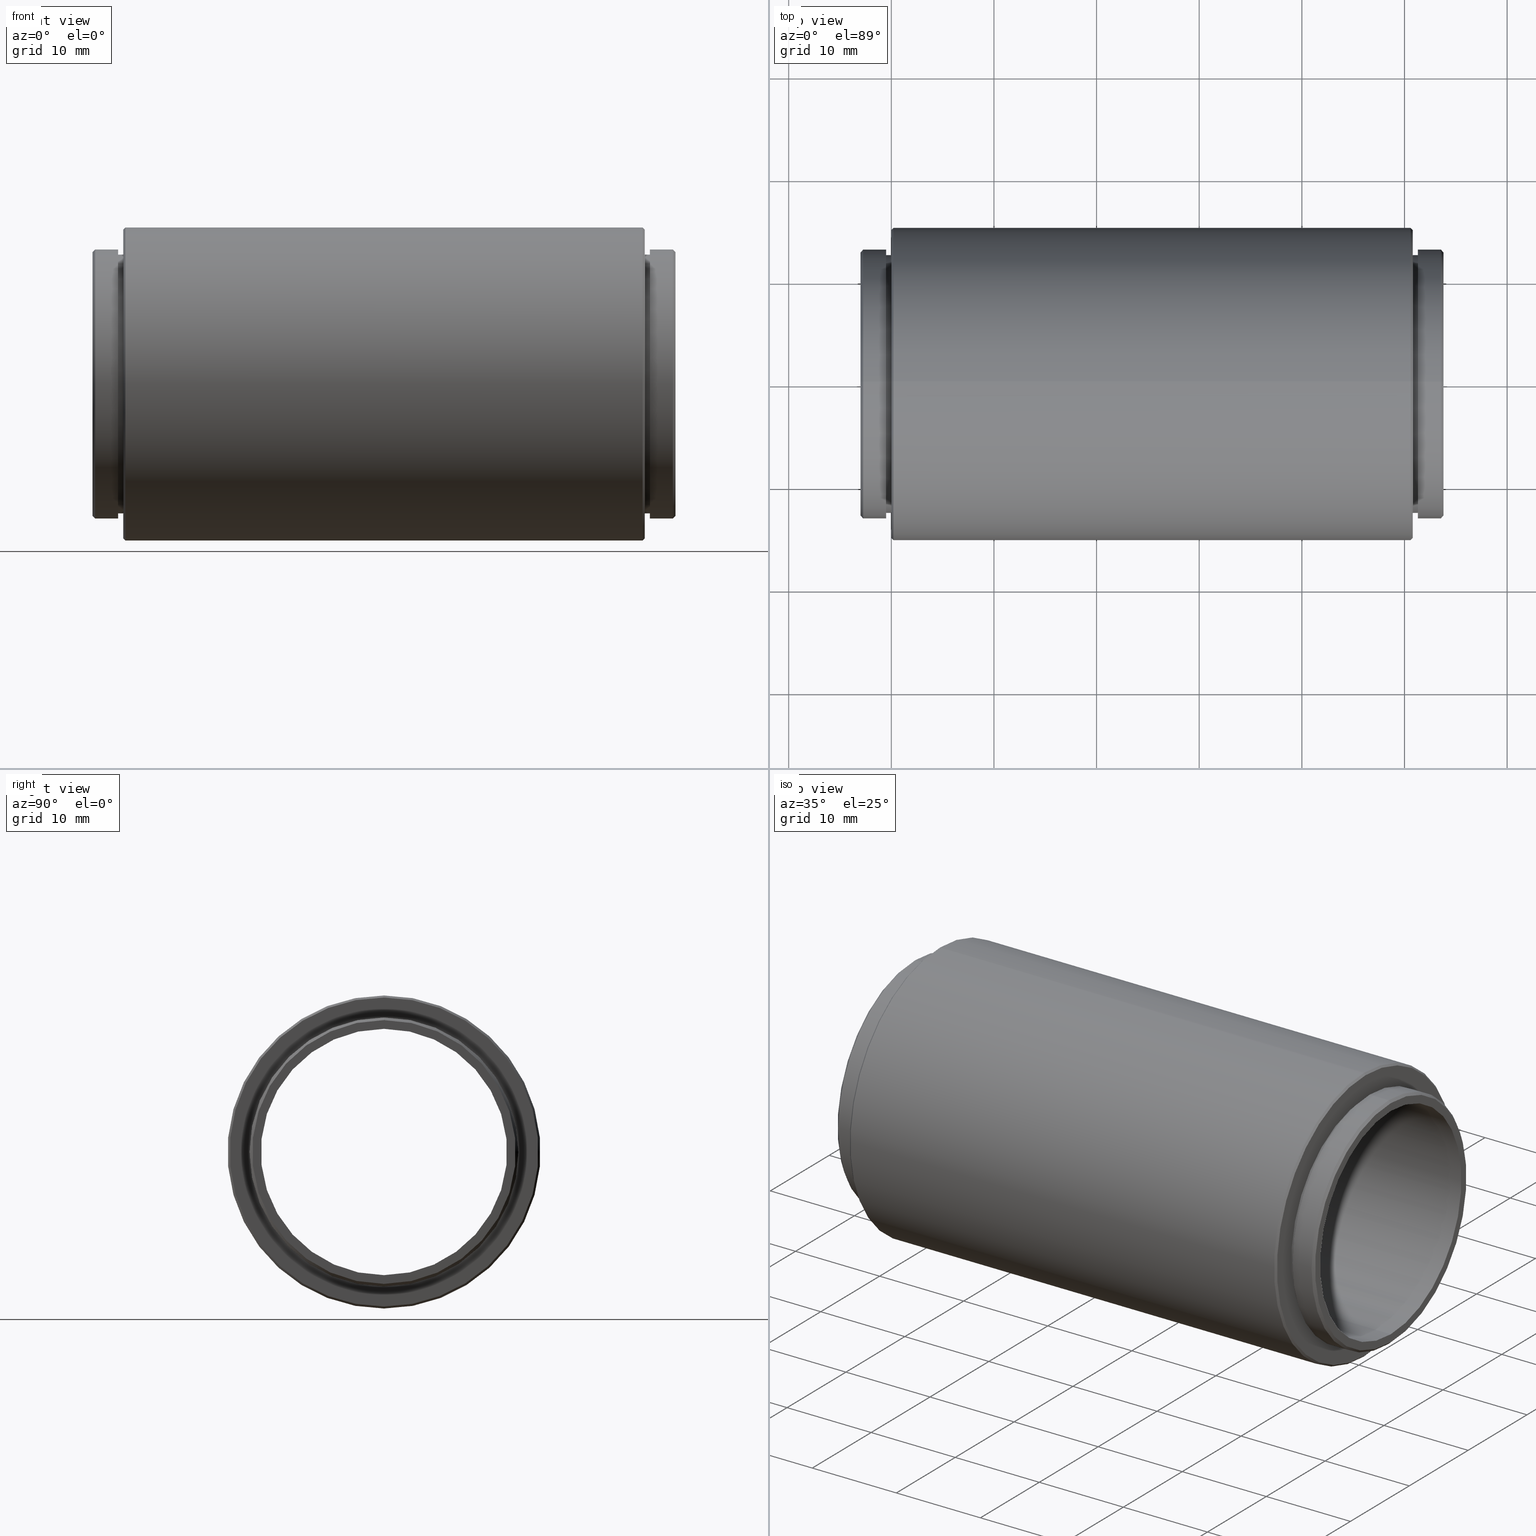
[diagram: canonical four-view strip — front | top / right | iso, engineering-drawing reading convention]
A machine part, canonical four-view strip (front | top / right | iso — engineering-drawing reading convention). The complete STEP part file that produces these views, byte-faithful:
ISO-10303-21;
HEADER;
FILE_DESCRIPTION (( 'STEP AP214' ),
    '1' );
FILE_NAME ('1.7.5.3_ZTJ-1-2.0_SM1��׼��2.0Ӣ����ʽ͸����Ͳ.STEP',
    '2021-07-27T08:29:46',
    ( 'Microsoft' ),
    ( 'Microsoft' ),
    'SwSTEP 2.0',
    'SolidWorks 2018',
    '' );
FILE_SCHEMA (( 'AUTOMOTIVE_DESIGN' ));
ENDSEC;

DATA;
#1 = ORIENTED_EDGE ( 'NONE', *, *, #713, .T. ) ;
#2 = VERTEX_POINT ( 'NONE', #416 ) ;
#3 =( LENGTH_UNIT ( ) NAMED_UNIT ( * ) SI_UNIT ( .MILLI., .METRE. ) );
#4 = UNCERTAINTY_MEASURE_WITH_UNIT (LENGTH_MEASURE( 1.000000000000000082E-05 ), #494, 'distance_accuracy_value', 'NONE');
#5 = PRESENTATION_LAYER_ASSIGNMENT (  '', '', ( #742 ) ) ;
#6 = DIRECTION ( 'NONE',  ( 0.000000000000000000, 0.000000000000000000, -1.000000000000000000 ) ) ;
#7 =( GEOMETRIC_REPRESENTATION_CONTEXT ( 3 ) GLOBAL_UNCERTAINTY_ASSIGNED_CONTEXT ( ( #61 ) ) GLOBAL_UNIT_ASSIGNED_CONTEXT ( ( #873, #392, #954 ) ) REPRESENTATION_CONTEXT ( 'NONE', 'WORKASPACE' ) );
#8 =( NAMED_UNIT ( * ) PLANE_ANGLE_UNIT ( ) SI_UNIT ( $, .RADIAN. ) );
#9 =( NAMED_UNIT ( * ) SI_UNIT ( $, .STERADIAN. ) SOLID_ANGLE_UNIT ( ) );
#10 = CARTESIAN_POINT ( 'NONE',  ( -50.00000000000000000, 0.000000000000000000, 0.000000000000000000 ) ) ;
#11 = SURFACE_STYLE_FILL_AREA ( #169 ) ;
#12 = SURFACE_STYLE_USAGE ( .BOTH. , #733 ) ;
#13 = PRESENTATION_STYLE_ASSIGNMENT (( #238 ) ) ;
#14 = MECHANICAL_DESIGN_GEOMETRIC_PRESENTATION_REPRESENTATION (  '', ( #923 ), #1030 ) ;
#15 = ADVANCED_FACE ( 'NONE', ( #784 ), #245, .T. ) ;
#16 = ORIENTED_EDGE ( 'NONE', *, *, #297, .F. ) ;
#17 = DIRECTION ( 'NONE',  ( -1.000000000000000000, 0.000000000000000000, 0.000000000000000000 ) ) ;
#18 = ORIENTED_EDGE ( 'NONE', *, *, #750, .T. ) ;
#19 = DIRECTION ( 'NONE',  ( 1.000000000000000000, 0.000000000000000000, 0.000000000000000000 ) ) ;
#20 = MECHANICAL_DESIGN_GEOMETRIC_PRESENTATION_REPRESENTATION (  '', ( #551 ), #780 ) ;
#21 =( NAMED_UNIT ( * ) PLANE_ANGLE_UNIT ( ) SI_UNIT ( $, .RADIAN. ) );
#22 = DIRECTION ( 'NONE',  ( 0.000000000000000000, 0.000000000000000000, 1.000000000000000000 ) ) ;
#23 = PRODUCT ( '1.7.5.3_ZTJ-1-2.0_SM1��׼��2.0Ӣ����ʽ͸����Ͳ', '1.7.5.3_ZTJ-1-2.0_SM1��׼��2.0Ӣ����ʽ͸����Ͳ', '', ( #979 ) ) ;
#24 = UNCERTAINTY_MEASURE_WITH_UNIT (LENGTH_MEASURE( 1.000000000000000082E-05 ), #485, 'distance_accuracy_value', 'NONE');
#25 = SURFACE_STYLE_FILL_AREA ( #906 ) ;
#26 =( NAMED_UNIT ( * ) SI_UNIT ( $, .STERADIAN. ) SOLID_ANGLE_UNIT ( ) );
#27 = EDGE_CURVE ( 'NONE', #822, #234, #318, .T. ) ;
#28 = DIRECTION ( 'NONE',  ( 0.000000000000000000, 0.000000000000000000, -1.000000000000000000 ) ) ;
#29 = ORIENTED_EDGE ( 'NONE', *, *, #424, .F. ) ;
#30 = CARTESIAN_POINT ( 'NONE',  ( -49.79999999999999005, 0.000000000000000000, 0.000000000000000000 ) ) ;
#31 = EDGE_LOOP ( 'NONE', ( #761, #889 ) ) ;
#32 = DIRECTION ( 'NONE',  ( 1.000000000000000000, 0.000000000000000000, 0.000000000000000000 ) ) ;
#33 = PRESENTATION_LAYER_ASSIGNMENT (  '', '', ( #682 ) ) ;
#34 = CIRCLE ( 'NONE', #107, 13.10000000000000142 ) ;
#35 = CARTESIAN_POINT ( 'NONE',  ( -50.00000000000000000, 0.000000000000000000, 0.000000000000000000 ) ) ;
#36 = CONICAL_SURFACE ( 'NONE', #624, 15.25000000000000000, 0.7853981633974482790 ) ;
#37 = COLOUR_RGB ( '',0.8980392156862745390, 0.9176470588235293713, 0.9294117647058823817 ) ;
#38 = SURFACE_STYLE_FILL_AREA ( #467 ) ;
#39 =( NAMED_UNIT ( * ) PLANE_ANGLE_UNIT ( ) SI_UNIT ( $, .RADIAN. ) );
#40 =( GEOMETRIC_REPRESENTATION_CONTEXT ( 3 ) GLOBAL_UNCERTAINTY_ASSIGNED_CONTEXT ( ( #786 ) ) GLOBAL_UNIT_ASSIGNED_CONTEXT ( ( #446, #696, #208 ) ) REPRESENTATION_CONTEXT ( 'NONE', 'WORKASPACE' ) );
#41 = ORIENTED_EDGE ( 'NONE', *, *, #71, .F. ) ;
#42 = FILL_AREA_STYLE_COLOUR ( '', #68 ) ;
#43 = ORIENTED_EDGE ( 'NONE', *, *, #71, .T. ) ;
#44 = EDGE_LOOP ( 'NONE', ( #630, #823, #489, #927 ) ) ;
#45 = DIRECTION ( 'NONE',  ( 0.000000000000000000, 0.000000000000000000, -1.000000000000000000 ) ) ;
#46 = CARTESIAN_POINT ( 'NONE',  ( 3.799999999999999822, 1.588979221893691742E-15, -12.85000000000001386 ) ) ;
#47 = DIRECTION ( 'NONE',  ( 0.000000000000000000, 0.000000000000000000, -1.000000000000000000 ) ) ;
#48 = PRESENTATION_LAYER_ASSIGNMENT (  '', '', ( #1044 ) ) ;
#49 =( NAMED_UNIT ( * ) PLANE_ANGLE_UNIT ( ) SI_UNIT ( $, .RADIAN. ) );
#50 = MECHANICAL_DESIGN_GEOMETRIC_PRESENTATION_REPRESENTATION (  '', ( #938 ), #340 ) ;
#51 = CONICAL_SURFACE ( 'NONE', #324, 12.85000000000001386, 0.7853981633974415066 ) ;
#52 = CARTESIAN_POINT ( 'NONE',  ( 1.300000000000000044, 0.000000000000000000, 0.000000000000000000 ) ) ;
#53 = VECTOR ( 'NONE', #60, 1000.000000000000000 ) ;
#54 = FILL_AREA_STYLE ('',( #42 ) ) ;
#55 = SURFACE_STYLE_FILL_AREA ( #676 ) ;
#56 = SURFACE_STYLE_USAGE ( .BOTH. , #604 ) ;
#57 = VERTEX_POINT ( 'NONE', #99 ) ;
#58 =( GEOMETRIC_REPRESENTATION_CONTEXT ( 3 ) GLOBAL_UNCERTAINTY_ASSIGNED_CONTEXT ( ( #260 ) ) GLOBAL_UNIT_ASSIGNED_CONTEXT ( ( #82, #476, #471 ) ) REPRESENTATION_CONTEXT ( 'NONE', 'WORKASPACE' ) );
#59 = ORIENTED_EDGE ( 'NONE', *, *, #543, .F. ) ;
#60 = DIRECTION ( 'NONE',  ( 0.7071067811865549002, 8.659560562354842879E-17, 0.7071067811865401342 ) ) ;
#61 = UNCERTAINTY_MEASURE_WITH_UNIT (LENGTH_MEASURE( 1.000000000000000082E-05 ), #873, 'distance_accuracy_value', 'NONE');
#62 = CARTESIAN_POINT ( 'NONE',  ( 3.550000000000008260, 0.000000000000000000, 0.000000000000000000 ) ) ;
#63 = MECHANICAL_DESIGN_GEOMETRIC_PRESENTATION_REPRESENTATION (  '', ( #742 ), #632 ) ;
#64 = FILL_AREA_STYLE ('',( #299 ) ) ;
#65 = PRESENTATION_LAYER_ASSIGNMENT (  '', '', ( #88 ) ) ;
#66 = FACE_OUTER_BOUND ( 'NONE', #396, .T. ) ;
#67 = DIRECTION ( 'NONE',  ( 1.000000000000000000, -0.000000000000000000, -0.000000000000000000 ) ) ;
#68 = COLOUR_RGB ( '',0.8980392156862745390, 0.9176470588235293713, 0.9294117647058823817 ) ;
#69 = DIRECTION ( 'NONE',  ( 0.000000000000000000, 0.000000000000000000, -1.000000000000000000 ) ) ;
#70 = ORIENTED_EDGE ( 'NONE', *, *, #736, .T. ) ;
#71 = EDGE_CURVE ( 'NONE', #367, #444, #746, .T. ) ;
#72 = EDGE_LOOP ( 'NONE', ( #112, #762 ) ) ;
#73 = DIRECTION ( 'NONE',  ( 0.000000000000000000, 0.000000000000000000, -1.000000000000000000 ) ) ;
#74 = EDGE_LOOP ( 'NONE', ( #588, #660, #805, #268 ) ) ;
#75 = AXIS2_PLACEMENT_3D ( 'NONE', #298, #698, #442 ) ;
#76 =( NAMED_UNIT ( * ) SI_UNIT ( $, .STERADIAN. ) SOLID_ANGLE_UNIT ( ) );
#77 = UNCERTAINTY_MEASURE_WITH_UNIT (LENGTH_MEASURE( 1.000000000000000082E-05 ), #453, 'distance_accuracy_value', 'NONE');
#78 = CARTESIAN_POINT ( 'NONE',  ( -53.00000000000000711, 0.000000000000000000, 0.000000000000000000 ) ) ;
#79 = SURFACE_SIDE_STYLE ('',( #656 ) ) ;
#80 =( NAMED_UNIT ( * ) SI_UNIT ( $, .STERADIAN. ) SOLID_ANGLE_UNIT ( ) );
#81 = MECHANICAL_DESIGN_GEOMETRIC_PRESENTATION_REPRESENTATION (  '', ( #959 ), #311 ) ;
#82 =( LENGTH_UNIT ( ) NAMED_UNIT ( * ) SI_UNIT ( .MILLI., .METRE. ) );
#83 = CIRCLE ( 'NONE', #907, 12.00000000000000178 ) ;
#84 = DIRECTION ( 'NONE',  ( -1.000000000000000000, -0.000000000000000000, -0.000000000000000000 ) ) ;
#85 = EDGE_LOOP ( 'NONE', ( #929, #961, #850, #407 ) ) ;
#86 =( NAMED_UNIT ( * ) PLANE_ANGLE_UNIT ( ) SI_UNIT ( $, .RADIAN. ) );
#87 = DIRECTION ( 'NONE',  ( 1.000000000000000000, 0.000000000000000000, 0.000000000000000000 ) ) ;
#88 = STYLED_ITEM ( 'NONE', ( #555 ), #984 ) ;
#89 = CARTESIAN_POINT ( 'NONE',  ( -50.50000000000000000, 0.000000000000000000, -12.60000000000000142 ) ) ;
#90 =( NAMED_UNIT ( * ) PLANE_ANGLE_UNIT ( ) SI_UNIT ( $, .RADIAN. ) );
#91 = CARTESIAN_POINT ( 'NONE',  ( 1.300000000000000044, 0.000000000000000000, 0.000000000000000000 ) ) ;
#92 = COLOUR_RGB ( '',0.8980392156862745390, 0.9176470588235293713, 0.9294117647058823817 ) ;
#93 = CARTESIAN_POINT ( 'NONE',  ( -52.75000000000000000, 0.000000000000000000, 0.000000000000000000 ) ) ;
#94 = PRESENTATION_STYLE_ASSIGNMENT (( #473 ) ) ;
#95 = SURFACE_STYLE_FILL_AREA ( #294 ) ;
#96 = CARTESIAN_POINT ( 'NONE',  ( -49.79999999999999005, 0.000000000000000000, 15.25000000000000000 ) ) ;
#97 = SURFACE_STYLE_FILL_AREA ( #54 ) ;
#98 = VERTEX_POINT ( 'NONE', #830 ) ;
#99 = CARTESIAN_POINT ( 'NONE',  ( 3.799999999999999822, 0.000000000000000000, 12.85000000000001386 ) ) ;
#100 = PRESENTATION_LAYER_ASSIGNMENT (  '', '', ( #292 ) ) ;
#101 = AXIS2_PLACEMENT_3D ( 'NONE', #720, #322, #87 ) ;
#102 = DIRECTION ( 'NONE',  ( 1.000000000000000000, 0.000000000000000000, 0.000000000000000000 ) ) ;
#103 = SURFACE_SIDE_STYLE ('',( #11 ) ) ;
#104 = EDGE_CURVE ( 'NONE', #179, #433, #117, .T. ) ;
#105 =( LENGTH_UNIT ( ) NAMED_UNIT ( * ) SI_UNIT ( .MILLI., .METRE. ) );
#106 = CIRCLE ( 'NONE', #764, 12.85000000000001386 ) ;
#107 = AXIS2_PLACEMENT_3D ( 'NONE', #925, #501, #838 ) ;
#108 = CIRCLE ( 'NONE', #495, 12.60000000000000142 ) ;
#109 = PLANE ( 'NONE',  #715 ) ;
#110 = VERTEX_POINT ( 'NONE', #185 ) ;
#111 = CARTESIAN_POINT ( 'NONE',  ( -53.00000000000000711, 0.000000000000000000, 0.000000000000000000 ) ) ;
#112 = ORIENTED_EDGE ( 'NONE', *, *, #502, .T. ) ;
#113 = CIRCLE ( 'NONE', #266, 12.00000000000000178 ) ;
#114 = FACE_BOUND ( 'NONE', #1027, .T. ) ;
#115 = CARTESIAN_POINT ( 'NONE',  ( 0.6000000000000099698, 1.867586368699713770E-15, -15.25000000000000000 ) ) ;
#116 = MECHANICAL_DESIGN_GEOMETRIC_PRESENTATION_REPRESENTATION (  '', ( #292 ), #831 ) ;
#117 = CIRCLE ( 'NONE', #130, 12.84999999999999964 ) ;
#118 = PRODUCT_RELATED_PRODUCT_CATEGORY ( 'part', '', ( #23 ) ) ;
#119 = ORIENTED_EDGE ( 'NONE', *, *, #391, .F. ) ;
#120 = SURFACE_SIDE_STYLE ('',( #944 ) ) ;
#121 = ORIENTED_EDGE ( 'NONE', *, *, #443, .F. ) ;
#122 = SURFACE_SIDE_STYLE ('',( #97 ) ) ;
#123 = CARTESIAN_POINT ( 'NONE',  ( 0.8000000000000000444, 0.000000000000000000, 0.000000000000000000 ) ) ;
#124 = EDGE_CURVE ( 'NONE', #719, #465, #960, .T. ) ;
#125 =( LENGTH_UNIT ( ) NAMED_UNIT ( * ) SI_UNIT ( .MILLI., .METRE. ) );
#126 = PRESENTATION_LAYER_ASSIGNMENT (  '', '', ( #878 ) ) ;
#127 = SURFACE_SIDE_STYLE ('',( #95 ) ) ;
#128 = LINE ( 'NONE', #753, #743 ) ;
#129 = CARTESIAN_POINT ( 'NONE',  ( -50.50000000000000000, 0.000000000000000000, -12.60000000000000142 ) ) ;
#130 = AXIS2_PLACEMENT_3D ( 'NONE', #111, #349, #425 ) ;
#131 = CARTESIAN_POINT ( 'NONE',  ( -50.50000000000000000, 0.000000000000000000, 0.000000000000000000 ) ) ;
#132 = VERTEX_POINT ( 'NONE', #920 ) ;
#133 = OPEN_SHELL ( 'NONE', ( #171, #751, #431, #726, #645, #411, #734, #984, #481, #261, #755, #183 ) ) ;
#134 = DIRECTION ( 'NONE',  ( 0.000000000000000000, 0.000000000000000000, -1.000000000000000000 ) ) ;
#135 = UNCERTAINTY_MEASURE_WITH_UNIT (LENGTH_MEASURE( 1.000000000000000082E-05 ), #813, 'distance_accuracy_value', 'NONE');
#136 = FILL_AREA_STYLE ('',( #942 ) ) ;
#137 = EDGE_CURVE ( 'NONE', #772, #822, #108, .T. ) ;
#138 = CARTESIAN_POINT ( 'NONE',  ( -52.75000000000000000, 0.000000000000000000, -13.10000000000000142 ) ) ;
#139 = VECTOR ( 'NONE', #1000, 1000.000000000000000 ) ;
#140 =( NAMED_UNIT ( * ) SI_UNIT ( $, .STERADIAN. ) SOLID_ANGLE_UNIT ( ) );
#141 = PRESENTATION_STYLE_ASSIGNMENT (( #357 ) ) ;
#142 = PRESENTATION_STYLE_ASSIGNMENT (( #12 ) ) ;
#143 = ORIENTED_EDGE ( 'NONE', *, *, #694, .F. ) ;
#144 = CARTESIAN_POINT ( 'NONE',  ( 3.799999999999999822, 0.000000000000000000, 0.000000000000000000 ) ) ;
#145 = DIRECTION ( 'NONE',  ( 0.000000000000000000, 0.000000000000000000, 1.000000000000000000 ) ) ;
#146 = UNCERTAINTY_MEASURE_WITH_UNIT (LENGTH_MEASURE( 1.000000000000000082E-05 ), #180, 'distance_accuracy_value', 'NONE');
#147 = PRESENTATION_LAYER_ASSIGNMENT (  '', '', ( #551 ) ) ;
#148 = SURFACE_SIDE_STYLE ('',( #38 ) ) ;
#149 = PRODUCT_DEFINITION_FORMATION_WITH_SPECIFIED_SOURCE ( '�κ�', '', #23, .NOT_KNOWN. ) ;
#150 = CIRCLE ( 'NONE', #1005, 13.10000000000000142 ) ;
#151 = COLOUR_RGB ( '',1.000000000000000000, 1.000000000000000000, 1.000000000000000000 ) ;
#152 = SURFACE_STYLE_USAGE ( .BOTH. , #631 ) ;
#153 = FACE_OUTER_BOUND ( 'NONE', #334, .T. ) ;
#154 = EDGE_CURVE ( 'NONE', #629, #982, #886, .T. ) ;
#155 = ORIENTED_EDGE ( 'NONE', *, *, #350, .F. ) ;
#156 = DIRECTION ( 'NONE',  ( 0.000000000000000000, 0.000000000000000000, -1.000000000000000000 ) ) ;
#157 = PRESENTATION_LAYER_ASSIGNMENT (  '', '', ( #319 ) ) ;
#158 = FILL_AREA_STYLE_COLOUR ( '', #913 ) ;
#159 = DIRECTION ( 'NONE',  ( 0.000000000000000000, 0.000000000000000000, -1.000000000000000000 ) ) ;
#160 = AXIS2_PLACEMENT_3D ( 'NONE', #820, #341, #812 ) ;
#161 = SURFACE_SIDE_STYLE ('',( #745 ) ) ;
#162 = LINE ( 'NONE', #209, #557 ) ;
#163 = UNCERTAINTY_MEASURE_WITH_UNIT (LENGTH_MEASURE( 1.000000000000000082E-05 ), #1031, 'distance_accuracy_value', 'NONE');
#164 = ORIENTED_EDGE ( 'NONE', *, *, #1003, .T. ) ;
#165 = DIRECTION ( 'NONE',  ( 0.000000000000000000, 0.000000000000000000, 1.000000000000000000 ) ) ;
#166 = ORIENTED_EDGE ( 'NONE', *, *, #799, .F. ) ;
#167 = STYLED_ITEM ( 'NONE', ( #449 ), #269 ) ;
#168 =( NAMED_UNIT ( * ) SI_UNIT ( $, .STERADIAN. ) SOLID_ANGLE_UNIT ( ) );
#169 = FILL_AREA_STYLE ('',( #338 ) ) ;
#170 = DIRECTION ( 'NONE',  ( -0.7071067811865524577, 8.659560562354873694E-17, -0.7071067811865426878 ) ) ;
#171 = ADVANCED_FACE ( 'NONE', ( #329 ), #705, .T. ) ;
#172 = EDGE_CURVE ( 'NONE', #132, #982, #914, .T. ) ;
#173 = PRESENTATION_STYLE_ASSIGNMENT (( #56 ) ) ;
#174 = FACE_OUTER_BOUND ( 'NONE', #1043, .T. ) ;
#175 = PRESENTATION_LAYER_ASSIGNMENT (  '', '', ( #938 ) ) ;
#176 = FACE_OUTER_BOUND ( 'NONE', #44, .T. ) ;
#177 = DIRECTION ( 'NONE',  ( 0.000000000000000000, 0.000000000000000000, -1.000000000000000000 ) ) ;
#178 = VERTEX_POINT ( 'NONE', #346 ) ;
#179 = VERTEX_POINT ( 'NONE', #582 ) ;
#180 =( LENGTH_UNIT ( ) NAMED_UNIT ( * ) SI_UNIT ( .MILLI., .METRE. ) );
#181 = DIRECTION ( 'NONE',  ( 1.000000000000000000, -0.000000000000000000, -0.000000000000000000 ) ) ;
#182 = PRESENTATION_LAYER_ASSIGNMENT (  '', '', ( #689 ) ) ;
#183 = ADVANCED_FACE ( 'NONE', ( #520 ), #535, .T. ) ;
#184 = PLANE ( 'NONE',  #160 ) ;
#185 = CARTESIAN_POINT ( 'NONE',  ( 1.300000000000000044, 1.604287306883033044E-15, -13.10000000000000142 ) ) ;
#186 = DIRECTION ( 'NONE',  ( 0.000000000000000000, 0.000000000000000000, 1.000000000000000000 ) ) ;
#187 = CIRCLE ( 'NONE', #919, 12.00000000000000178 ) ;
#188 = EDGE_CURVE ( 'NONE', #672, #465, #1024, .T. ) ;
#189 = DIRECTION ( 'NONE',  ( 0.000000000000000000, 0.000000000000000000, -1.000000000000000000 ) ) ;
#190 = FACE_BOUND ( 'NONE', #496, .T. ) ;
#191 = CIRCLE ( 'NONE', #1051, 12.60000000000000142 ) ;
#192 = DIRECTION ( 'NONE',  ( 0.000000000000000000, 0.000000000000000000, 1.000000000000000000 ) ) ;
#193 = ORIENTED_EDGE ( 'NONE', *, *, #661, .F. ) ;
#194 = DIRECTION ( 'NONE',  ( 1.000000000000000000, -0.000000000000000000, -0.000000000000000000 ) ) ;
#195 = UNCERTAINTY_MEASURE_WITH_UNIT (LENGTH_MEASURE( 1.000000000000000082E-05 ), #514, 'distance_accuracy_value', 'NONE');
#196 =( LENGTH_UNIT ( ) NAMED_UNIT ( * ) SI_UNIT ( .MILLI., .METRE. ) );
#197 = AXIS2_PLACEMENT_3D ( 'NONE', #62, #521, #856 ) ;
#198 = DIRECTION ( 'NONE',  ( 0.000000000000000000, 0.000000000000000000, 1.000000000000000000 ) ) ;
#199 = DIRECTION ( 'NONE',  ( 0.000000000000000000, 0.000000000000000000, -1.000000000000000000 ) ) ;
#200 = CYLINDRICAL_SURFACE ( 'NONE', #594, 12.00000000000000178 ) ;
#201 = COLOUR_RGB ( '',0.8980392156862745390, 0.9176470588235293713, 0.9294117647058823817 ) ;
#202 = AXIS2_PLACEMENT_3D ( 'NONE', #286, #361, #936 ) ;
#203 = CIRCLE ( 'NONE', #941, 12.60000000000000142 ) ;
#204 = EDGE_LOOP ( 'NONE', ( #70, #1011, #222, #395 ) ) ;
#205 = FILL_AREA_STYLE ('',( #363 ) ) ;
#206 = ORIENTED_EDGE ( 'NONE', *, *, #736, .F. ) ;
#207 = ORIENTED_EDGE ( 'NONE', *, *, #472, .F. ) ;
#208 =( NAMED_UNIT ( * ) SI_UNIT ( $, .STERADIAN. ) SOLID_ANGLE_UNIT ( ) );
#209 = CARTESIAN_POINT ( 'NONE',  ( -52.75000000000000000, 0.000000000000000000, -13.10000000000000142 ) ) ;
#210 = MECHANICAL_DESIGN_GEOMETRIC_PRESENTATION_REPRESENTATION (  '', ( #1044 ), #263 ) ;
#211 = FILL_AREA_STYLE_COLOUR ( '', #585 ) ;
#212 =( GEOMETRIC_REPRESENTATION_CONTEXT ( 3 ) GLOBAL_UNCERTAINTY_ASSIGNED_CONTEXT ( ( #195 ) ) GLOBAL_UNIT_ASSIGNED_CONTEXT ( ( #514, #372, #517 ) ) REPRESENTATION_CONTEXT ( 'NONE', 'WORKASPACE' ) );
#213 = UNCERTAINTY_MEASURE_WITH_UNIT (LENGTH_MEASURE( 1.000000000000000082E-05 ), #949, 'distance_accuracy_value', 'NONE');
#214 = SURFACE_SIDE_STYLE ('',( #909 ) ) ;
#215 = CONICAL_SURFACE ( 'NONE', #541, 15.05000000000001492, 0.7853981633974352894 ) ;
#216 = CARTESIAN_POINT ( 'NONE',  ( -49.79999999999999005, 0.000000000000000000, -15.25000000000000000 ) ) ;
#217 = PRESENTATION_STYLE_ASSIGNMENT (( #834 ) ) ;
#218 = CIRCLE ( 'NONE', #653, 15.04999999999999361 ) ;
#219 = AXIS2_PLACEMENT_3D ( 'NONE', #375, #528, #693 ) ;
#220 = PRESENTATION_STYLE_ASSIGNMENT (( #1019 ) ) ;
#221 = CARTESIAN_POINT ( 'NONE',  ( 3.799999999999999822, 0.000000000000000000, 0.000000000000000000 ) ) ;
#222 = ORIENTED_EDGE ( 'NONE', *, *, #821, .T. ) ;
#223 = CARTESIAN_POINT ( 'NONE',  ( -50.50000000000000000, 1.543054966925665273E-15, 12.60000000000000142 ) ) ;
#224 = MECHANICAL_DESIGN_GEOMETRIC_PRESENTATION_REPRESENTATION (  '', ( #435 ), #995 ) ;
#225 = DIRECTION ( 'NONE',  ( 0.000000000000000000, 0.000000000000000000, 1.000000000000000000 ) ) ;
#226 = FACE_OUTER_BOUND ( 'NONE', #981, .T. ) ;
#227 = FACE_OUTER_BOUND ( 'NONE', #795, .T. ) ;
#228 = PRESENTATION_STYLE_ASSIGNMENT (( #397 ) ) ;
#229 = DIRECTION ( 'NONE',  ( 1.000000000000000000, -0.000000000000000000, -0.000000000000000000 ) ) ;
#230 = FACE_OUTER_BOUND ( 'NONE', #204, .T. ) ;
#231 = FACE_OUTER_BOUND ( 'NONE', #475, .T. ) ;
#232 = EDGE_CURVE ( 'NONE', #510, #259, #507, .T. ) ;
#233 = DIRECTION ( 'NONE',  ( 1.000000000000000000, 0.000000000000000000, 0.000000000000000000 ) ) ;
#234 = VERTEX_POINT ( 'NONE', #282 ) ;
#235 =( GEOMETRIC_REPRESENTATION_CONTEXT ( 3 ) GLOBAL_UNCERTAINTY_ASSIGNED_CONTEXT ( ( #801 ) ) GLOBAL_UNIT_ASSIGNED_CONTEXT ( ( #570, #735, #565 ) ) REPRESENTATION_CONTEXT ( 'NONE', 'WORKASPACE' ) );
#236 = ORIENTED_EDGE ( 'NONE', *, *, #369, .F. ) ;
#237 = DIRECTION ( 'NONE',  ( 0.000000000000000000, 0.000000000000000000, -1.000000000000000000 ) ) ;
#238 = SURFACE_STYLE_USAGE ( .BOTH. , #79 ) ;
#239 = MECHANICAL_DESIGN_GEOMETRIC_PRESENTATION_REPRESENTATION (  '', ( #689 ), #58 ) ;
#240 = DIRECTION ( 'NONE',  ( -1.000000000000000000, -0.000000000000000000, -0.000000000000000000 ) ) ;
#241 = COLOUR_RGB ( '',0.8980392156862745390, 0.9176470588235293713, 0.9294117647058823817 ) ;
#242 = FILL_AREA_STYLE ('',( #890 ) ) ;
#243 = PRESENTATION_STYLE_ASSIGNMENT (( #527 ) ) ;
#244 = DIRECTION ( 'NONE',  ( -1.000000000000000000, -0.000000000000000000, -0.000000000000000000 ) ) ;
#245 = CONICAL_SURFACE ( 'NONE', #973, 13.10000000000000142, 0.7853981633974378429 ) ;
#246 = EDGE_CURVE ( 'NONE', #234, #849, #781, .T. ) ;
#247 = EDGE_LOOP ( 'NONE', ( #164, #902 ) ) ;
#248 = VERTEX_POINT ( 'NONE', #607 ) ;
#249 = DIRECTION ( 'NONE',  ( 0.000000000000000000, 0.000000000000000000, 1.000000000000000000 ) ) ;
#250 = DIRECTION ( 'NONE',  ( 1.000000000000000000, -0.000000000000000000, -0.000000000000000000 ) ) ;
#251 = CARTESIAN_POINT ( 'NONE',  ( 3.799999999999999822, 1.469576158976824144E-15, 12.00000000000000178 ) ) ;
#252 = AXIS2_PLACEMENT_3D ( 'NONE', #52, #775, #73 ) ;
#253 = COLOUR_RGB ( '',0.8980392156862745390, 0.9176470588235293713, 0.9294117647058823817 ) ;
#254 = SURFACE_SIDE_STYLE ('',( #553 ) ) ;
#255 = VERTEX_POINT ( 'NONE', #46 ) ;
#256 = DIRECTION ( 'NONE',  ( 1.000000000000000000, -0.000000000000000000, -0.000000000000000000 ) ) ;
#257 = EDGE_LOOP ( 'NONE', ( #380, #548, #633, #659 ) ) ;
#258 = AXIS2_PLACEMENT_3D ( 'NONE', #366, #525, #134 ) ;
#259 = VERTEX_POINT ( 'NONE', #854 ) ;
#260 = UNCERTAINTY_MEASURE_WITH_UNIT (LENGTH_MEASURE( 1.000000000000000082E-05 ), #82, 'distance_accuracy_value', 'NONE');
#261 = ADVANCED_FACE ( 'NONE', ( #305 ), #778, .T. ) ;
#262 = CARTESIAN_POINT ( 'NONE',  ( 3.799999999999999822, 0.000000000000000000, 0.000000000000000000 ) ) ;
#263 =( GEOMETRIC_REPRESENTATION_CONTEXT ( 3 ) GLOBAL_UNCERTAINTY_ASSIGNED_CONTEXT ( ( #135 ) ) GLOBAL_UNIT_ASSIGNED_CONTEXT ( ( #813, #330, #9 ) ) REPRESENTATION_CONTEXT ( 'NONE', 'WORKASPACE' ) );
#264 = DIRECTION ( 'NONE',  ( 0.000000000000000000, 0.000000000000000000, -1.000000000000000000 ) ) ;
#265 = FACE_OUTER_BOUND ( 'NONE', #848, .T. ) ;
#266 = AXIS2_PLACEMENT_3D ( 'NONE', #262, #488, #177 ) ;
#267 = SURFACE_STYLE_FILL_AREA ( #309 ) ;
#268 = ORIENTED_EDGE ( 'NONE', *, *, #566, .T. ) ;
#269 = ADVANCED_FACE ( 'NONE', ( #560 ), #683, .T. ) ;
#270 = FILL_AREA_STYLE_COLOUR ( '', #482 ) ;
#271 = ORIENTED_EDGE ( 'NONE', *, *, #1003, .F. ) ;
#272 = DIRECTION ( 'NONE',  ( 1.000000000000000000, -0.000000000000000000, -0.000000000000000000 ) ) ;
#273 = AXIS2_PLACEMENT_3D ( 'NONE', #817, #19, #976 ) ;
#274 = APPLICATION_PROTOCOL_DEFINITION ( 'draft international standard', 'automotive_design', 1998, #824 ) ;
#275 = DIRECTION ( 'NONE',  ( 1.000000000000000000, -0.000000000000000000, -0.000000000000000000 ) ) ;
#276 = FILL_AREA_STYLE ('',( #270 ) ) ;
#277 = AXIS2_PLACEMENT_3D ( 'NONE', #505, #181, #264 ) ;
#278 = CARTESIAN_POINT ( 'NONE',  ( 0.6000000000000099698, 0.000000000000000000, 0.000000000000000000 ) ) ;
#279 = COLOUR_RGB ( '',0.8980392156862745390, 0.9176470588235293713, 0.9294117647058823817 ) ;
#280 = STYLED_ITEM ( 'NONE', ( #732 ), #828 ) ;
#281 = ORIENTED_EDGE ( 'NONE', *, *, #622, .F. ) ;
#282 = CARTESIAN_POINT ( 'NONE',  ( -50.00000000000000000, 1.543054966925665273E-15, 12.60000000000000142 ) ) ;
#283 = ORIENTED_EDGE ( 'NONE', *, *, #615, .T. ) ;
#284 = EDGE_LOOP ( 'NONE', ( #808, #1013, #970, #524 ) ) ;
#285 = EDGE_CURVE ( 'NONE', #259, #248, #657, .T. ) ;
#286 = CARTESIAN_POINT ( 'NONE',  ( 3.799999999999999822, 0.000000000000000000, 0.000000000000000000 ) ) ;
#287 = PRESENTATION_LAYER_ASSIGNMENT (  '', '', ( #825 ) ) ;
#288 = CARTESIAN_POINT ( 'NONE',  ( -53.00000000000000711, 0.000000000000000000, -12.00000000000000178 ) ) ;
#289 = DIRECTION ( 'NONE',  ( 0.000000000000000000, 0.000000000000000000, -1.000000000000000000 ) ) ;
#290 = VECTOR ( 'NONE', #513, 1000.000000000000000 ) ;
#291 = VECTOR ( 'NONE', #731, 1000.000000000000000 ) ;
#292 = STYLED_ITEM ( 'NONE', ( #141 ), #171 ) ;
#293 = CIRCLE ( 'NONE', #774, 15.05000000000001492 ) ;
#294 = FILL_AREA_STYLE ('',( #1012 ) ) ;
#295 = ORIENTED_EDGE ( 'NONE', *, *, #137, .T. ) ;
#296 =( NAMED_UNIT ( * ) PLANE_ANGLE_UNIT ( ) SI_UNIT ( $, .RADIAN. ) );
#297 = EDGE_CURVE ( 'NONE', #98, #487, #191, .T. ) ;
#298 = CARTESIAN_POINT ( 'NONE',  ( -49.99999999999999289, 0.000000000000000000, 0.000000000000000000 ) ) ;
#299 = FILL_AREA_STYLE_COLOUR ( '', #151 ) ;
#300 = FACE_OUTER_BOUND ( 'NONE', #72, .T. ) ;
#301 = VECTOR ( 'NONE', #884, 1000.000000000000000 ) ;
#302 = SURFACE_STYLE_FILL_AREA ( #136 ) ;
#303 = FILL_AREA_STYLE ('',( #703 ) ) ;
#304 = AXIS2_PLACEMENT_3D ( 'NONE', #922, #1002, #192 ) ;
#305 = FACE_OUTER_BOUND ( 'NONE', #917, .T. ) ;
#306 =( NAMED_UNIT ( * ) PLANE_ANGLE_UNIT ( ) SI_UNIT ( $, .RADIAN. ) );
#307 = ORIENTED_EDGE ( 'NONE', *, *, #581, .T. ) ;
#308 = ORIENTED_EDGE ( 'NONE', *, *, #977, .T. ) ;
#309 = FILL_AREA_STYLE ('',( #955 ) ) ;
#310 = CARTESIAN_POINT ( 'NONE',  ( 1.300000000000000044, 0.000000000000000000, 12.60000000000000142 ) ) ;
#311 =( GEOMETRIC_REPRESENTATION_CONTEXT ( 3 ) GLOBAL_UNCERTAINTY_ASSIGNED_CONTEXT ( ( #986 ) ) GLOBAL_UNIT_ASSIGNED_CONTEXT ( ( #798, #969, #725 ) ) REPRESENTATION_CONTEXT ( 'NONE', 'WORKASPACE' ) );
#312 = SURFACE_SIDE_STYLE ('',( #866 ) ) ;
#313 = CONICAL_SURFACE ( 'NONE', #437, 13.10000000000000142, 0.7853981633974378429 ) ;
#314 = DIRECTION ( 'NONE',  ( 0.000000000000000000, 0.000000000000000000, -1.000000000000000000 ) ) ;
#315 = PRESENTATION_STYLE_ASSIGNMENT (( #1025 ) ) ;
#316 = EDGE_CURVE ( 'NONE', #2, #671, #460, .T. ) ;
#317 = DIRECTION ( 'NONE',  ( 1.000000000000000000, -0.000000000000000000, -0.000000000000000000 ) ) ;
#318 = LINE ( 'NONE', #899, #576 ) ;
#319 = STYLED_ITEM ( 'NONE', ( #597 ), #571 ) ;
#320 = EDGE_LOOP ( 'NONE', ( #381, #523, #41, #166 ) ) ;
#321 = ORIENTED_EDGE ( 'NONE', *, *, #566, .F. ) ;
#322 = DIRECTION ( 'NONE',  ( 0.000000000000000000, 0.000000000000000000, 1.000000000000000000 ) ) ;
#323 = CARTESIAN_POINT ( 'NONE',  ( 0.8000000000000000444, 0.000000000000000000, 0.000000000000000000 ) ) ;
#324 = AXIS2_PLACEMENT_3D ( 'NONE', #666, #17, #198 ) ;
#325 = DIRECTION ( 'NONE',  ( 0.000000000000000000, 0.000000000000000000, -1.000000000000000000 ) ) ;
#326 = PRESENTATION_STYLE_ASSIGNMENT (( #335 ) ) ;
#327 =( LENGTH_UNIT ( ) NAMED_UNIT ( * ) SI_UNIT ( .MILLI., .METRE. ) );
#328 = FILL_AREA_STYLE ('',( #1047 ) ) ;
#329 = FACE_OUTER_BOUND ( 'NONE', #1026, .T. ) ;
#330 =( NAMED_UNIT ( * ) PLANE_ANGLE_UNIT ( ) SI_UNIT ( $, .RADIAN. ) );
#331 = PRESENTATION_LAYER_ASSIGNMENT (  '', '', ( #721 ) ) ;
#332 = ORIENTED_EDGE ( 'NONE', *, *, #963, .T. ) ;
#333 = DIRECTION ( 'NONE',  ( 0.000000000000000000, 0.000000000000000000, 1.000000000000000000 ) ) ;
#334 = EDGE_LOOP ( 'NONE', ( #207, #931, #1041, #684 ) ) ;
#335 = SURFACE_STYLE_USAGE ( .BOTH. , #103 ) ;
#336 = DIRECTION ( 'NONE',  ( 1.000000000000000000, -0.000000000000000000, -0.000000000000000000 ) ) ;
#337 = APPLICATION_PROTOCOL_DEFINITION ( 'draft international standard', 'automotive_design', 1998, #654 ) ;
#338 = FILL_AREA_STYLE_COLOUR ( '', #201 ) ;
#339 = EDGE_CURVE ( 'NONE', #900, #887, #203, .T. ) ;
#340 =( GEOMETRIC_REPRESENTATION_CONTEXT ( 3 ) GLOBAL_UNCERTAINTY_ASSIGNED_CONTEXT ( ( #612 ) ) GLOBAL_UNIT_ASSIGNED_CONTEXT ( ( #196, #583, #26 ) ) REPRESENTATION_CONTEXT ( 'NONE', 'WORKASPACE' ) );
#341 = DIRECTION ( 'NONE',  ( -1.000000000000000000, 0.000000000000000000, 0.000000000000000000 ) ) ;
#342 = CYLINDRICAL_SURFACE ( 'NONE', #466, 12.60000000000000142 ) ;
#343 = ADVANCED_FACE ( 'NONE', ( #231 ), #992, .T. ) ;
#344 = FILL_AREA_STYLE_COLOUR ( '', #279 ) ;
#345 = ORIENTED_EDGE ( 'NONE', *, *, #843, .T. ) ;
#346 = CARTESIAN_POINT ( 'NONE',  ( 0.8000000000000000444, 1.855339900708241202E-15, -15.05000000000001492 ) ) ;
#347 =( GEOMETRIC_REPRESENTATION_CONTEXT ( 3 ) GLOBAL_UNCERTAINTY_ASSIGNED_CONTEXT ( ( #853 ) ) GLOBAL_UNIT_ASSIGNED_CONTEXT ( ( #516, #593, #1009 ) ) REPRESENTATION_CONTEXT ( 'NONE', 'WORKASPACE' ) );
#348 = ADVANCED_FACE ( 'NONE', ( #153 ), #957, .T. ) ;
#349 = DIRECTION ( 'NONE',  ( -1.000000000000000000, 0.000000000000000000, 0.000000000000000000 ) ) ;
#350 = EDGE_CURVE ( 'NONE', #599, #2, #218, .T. ) ;
#351 = LINE ( 'NONE', #679, #609 ) ;
#352 = FILL_AREA_STYLE_COLOUR ( '', #92 ) ;
#353 = SURFACE_STYLE_FILL_AREA ( #891 ) ;
#354 = SURFACE_STYLE_FILL_AREA ( #647 ) ;
#355 = SURFACE_SIDE_STYLE ('',( #1020 ) ) ;
#356 = ORIENTED_EDGE ( 'NONE', *, *, #424, .T. ) ;
#357 = SURFACE_STYLE_USAGE ( .BOTH. , #432 ) ;
#358 = AXIS2_PLACEMENT_3D ( 'NONE', #427, #650, #483 ) ;
#359 = SURFACE_SIDE_STYLE ('',( #836 ) ) ;
#360 = AXIS2_PLACEMENT_3D ( 'NONE', #144, #455, #225 ) ;
#361 = DIRECTION ( 'NONE',  ( -1.000000000000000000, -0.000000000000000000, -0.000000000000000000 ) ) ;
#362 = CIRCLE ( 'NONE', #655, 15.25000000000000000 ) ;
#363 = FILL_AREA_STYLE_COLOUR ( '', #667 ) ;
#364 = PRODUCT_DEFINITION_CONTEXT ( 'detailed design', #824, 'design' ) ;
#365 = PRESENTATION_STYLE_ASSIGNMENT (( #439 ) ) ;
#366 = CARTESIAN_POINT ( 'NONE',  ( -49.79999999999999005, 0.000000000000000000, 0.000000000000000000 ) ) ;
#367 = VERTEX_POINT ( 'NONE', #138 ) ;
#368 = DIRECTION ( 'NONE',  ( 0.7071067811865549002, 0.000000000000000000, -0.7071067811865401342 ) ) ;
#369 = EDGE_CURVE ( 'NONE', #178, #672, #293, .T. ) ;
#370 = CARTESIAN_POINT ( 'NONE',  ( 0.8000000000000000444, 0.000000000000000000, 15.05000000000001492 ) ) ;
#371 =( GEOMETRIC_REPRESENTATION_CONTEXT ( 3 ) GLOBAL_UNCERTAINTY_ASSIGNED_CONTEXT ( ( #470 ) ) GLOBAL_UNIT_ASSIGNED_CONTEXT ( ( #864, #383, #457 ) ) REPRESENTATION_CONTEXT ( 'NONE', 'WORKASPACE' ) );
#372 =( NAMED_UNIT ( * ) PLANE_ANGLE_UNIT ( ) SI_UNIT ( $, .RADIAN. ) );
#373 = CIRCLE ( 'NONE', #765, 12.60000000000000142 ) ;
#374 = SURFACE_STYLE_FILL_AREA ( #242 ) ;
#375 = CARTESIAN_POINT ( 'NONE',  ( -50.50000000000000000, 0.000000000000000000, 0.000000000000000000 ) ) ;
#376 = FACE_OUTER_BOUND ( 'NONE', #31, .T. ) ;
#377 = PRESENTATION_LAYER_ASSIGNMENT (  '', '', ( #478 ) ) ;
#378 = DIRECTION ( 'NONE',  ( 0.000000000000000000, 0.000000000000000000, -1.000000000000000000 ) ) ;
#379 =( NAMED_UNIT ( * ) PLANE_ANGLE_UNIT ( ) SI_UNIT ( $, .RADIAN. ) );
#380 = ORIENTED_EDGE ( 'NONE', *, *, #27, .F. ) ;
#381 = ORIENTED_EDGE ( 'NONE', *, *, #104, .F. ) ;
#382 =( LENGTH_UNIT ( ) NAMED_UNIT ( * ) SI_UNIT ( .MILLI., .METRE. ) );
#383 =( NAMED_UNIT ( * ) PLANE_ANGLE_UNIT ( ) SI_UNIT ( $, .RADIAN. ) );
#384 =( GEOMETRIC_REPRESENTATION_CONTEXT ( 3 ) GLOBAL_UNCERTAINTY_ASSIGNED_CONTEXT ( ( #163 ) ) GLOBAL_UNIT_ASSIGNED_CONTEXT ( ( #1031, #701, #76 ) ) REPRESENTATION_CONTEXT ( 'NONE', 'WORKASPACE' ) );
#385 =( NAMED_UNIT ( * ) PLANE_ANGLE_UNIT ( ) SI_UNIT ( $, .RADIAN. ) );
#386 = MECHANICAL_DESIGN_GEOMETRIC_PRESENTATION_REPRESENTATION (  '', ( #619 ), #371 ) ;
#387 = FILL_AREA_STYLE ('',( #461 ) ) ;
#388 = CARTESIAN_POINT ( 'NONE',  ( 0.8000000000000000444, 0.000000000000000000, 0.000000000000000000 ) ) ;
#389 = COLOUR_RGB ( '',0.8980392156862745390, 0.9176470588235293713, 0.9294117647058823817 ) ;
#390 = SURFACE_STYLE_FILL_AREA ( #303 ) ;
#391 = EDGE_CURVE ( 'NONE', #872, #819, #847, .T. ) ;
#392 =( NAMED_UNIT ( * ) PLANE_ANGLE_UNIT ( ) SI_UNIT ( $, .RADIAN. ) );
#393 = AXIS2_PLACEMENT_3D ( 'NONE', #796, #240, #882 ) ;
#394 = COLOUR_RGB ( '',0.8980392156862745390, 0.9176470588235293713, 0.9294117647058823817 ) ;
#395 = ORIENTED_EDGE ( 'NONE', *, *, #509, .F. ) ;
#396 = EDGE_LOOP ( 'NONE', ( #43, #658, #708, #422 ) ) ;
#397 = SURFACE_STYLE_USAGE ( .BOTH. , #1045 ) ;
#398 = CARTESIAN_POINT ( 'NONE',  ( -49.99999999999999289, 0.000000000000000000, 0.000000000000000000 ) ) ;
#399 = AXIS2_PLACEMENT_3D ( 'NONE', #1001, #272, #22 ) ;
#400 = UNCERTAINTY_MEASURE_WITH_UNIT (LENGTH_MEASURE( 1.000000000000000082E-05 ), #3, 'distance_accuracy_value', 'NONE');
#401 = SURFACE_SIDE_STYLE ('',( #374 ) ) ;
#402 = VECTOR ( 'NONE', #275, 1000.000000000000000 ) ;
#403 = CARTESIAN_POINT ( 'NONE',  ( 0.8000000000000000444, 0.000000000000000000, 12.60000000000000142 ) ) ;
#404 = EDGE_CURVE ( 'NONE', #179, #444, #759, .T. ) ;
#405 = DIRECTION ( 'NONE',  ( 0.000000000000000000, 0.000000000000000000, 1.000000000000000000 ) ) ;
#406 = ADVANCED_FACE ( 'NONE', ( #66 ), #558, .T. ) ;
#407 = ORIENTED_EDGE ( 'NONE', *, *, #124, .F. ) ;
#408 = CARTESIAN_POINT ( 'NONE',  ( -53.00000000000000711, 0.000000000000000000, -12.84999999999999964 ) ) ;
#409 = CARTESIAN_POINT ( 'NONE',  ( 3.799999999999999822, 1.573671136904350638E-15, -12.85000000000001386 ) ) ;
#410 = DIRECTION ( 'NONE',  ( 1.000000000000000000, 0.000000000000000000, 0.000000000000000000 ) ) ;
#411 = ADVANCED_FACE ( 'NONE', ( #681 ), #342, .T. ) ;
#412 =( NAMED_UNIT ( * ) PLANE_ANGLE_UNIT ( ) SI_UNIT ( $, .RADIAN. ) );
#413 = UNCERTAINTY_MEASURE_WITH_UNIT (LENGTH_MEASURE( 1.000000000000000082E-05 ), #756, 'distance_accuracy_value', 'NONE');
#414 = STYLED_ITEM ( 'NONE', ( #228 ), #810 ) ;
#415 = FACE_OUTER_BOUND ( 'NONE', #420, .T. ) ;
#416 = CARTESIAN_POINT ( 'NONE',  ( -49.99999999999999289, 0.000000000000000000, -15.04999999999999361 ) ) ;
#417 = DIRECTION ( 'NONE',  ( 0.000000000000000000, 0.000000000000000000, -1.000000000000000000 ) ) ;
#418 = PRESENTATION_LAYER_ASSIGNMENT (  '', '', ( #484 ) ) ;
#419 = ORIENTED_EDGE ( 'NONE', *, *, #297, .T. ) ;
#420 = EDGE_LOOP ( 'NONE', ( #564, #29, #549, #641 ) ) ;
#421 = SURFACE_STYLE_USAGE ( .BOTH. , #903 ) ;
#422 = ORIENTED_EDGE ( 'NONE', *, *, #843, .F. ) ;
#423 = SURFACE_SIDE_STYLE ('',( #990 ) ) ;
#424 = EDGE_CURVE ( 'NONE', #747, #132, #83, .T. ) ;
#425 = DIRECTION ( 'NONE',  ( 0.000000000000000000, 0.000000000000000000, 1.000000000000000000 ) ) ;
#426 = AXIS2_PLACEMENT_3D ( 'NONE', #1032, #317, #156 ) ;
#427 = CARTESIAN_POINT ( 'NONE',  ( 0.8000000000000000444, 0.000000000000000000, 0.000000000000000000 ) ) ;
#428 = COLOUR_RGB ( '',0.8980392156862745390, 0.9176470588235293713, 0.9294117647058823817 ) ;
#429 = UNCERTAINTY_MEASURE_WITH_UNIT (LENGTH_MEASURE( 1.000000000000000082E-05 ), #699, 'distance_accuracy_value', 'NONE');
#430 = ORIENTED_EDGE ( 'NONE', *, *, #472, .T. ) ;
#431 = ADVANCED_FACE ( 'NONE', ( #230 ), #438, .T. ) ;
#432 = SURFACE_SIDE_STYLE ('',( #55 ) ) ;
#433 = VERTEX_POINT ( 'NONE', #408 ) ;
#434 = CARTESIAN_POINT ( 'NONE',  ( 0.8000000000000000444, 0.000000000000000000, 15.05000000000001492 ) ) ;
#435 = STYLED_ITEM ( 'NONE', ( #243 ), #348 ) ;
#436 = VECTOR ( 'NONE', #928, 1000.000000000000114 ) ;
#437 = AXIS2_PLACEMENT_3D ( 'NONE', #793, #67, #789 ) ;
#438 = CYLINDRICAL_SURFACE ( 'NONE', #573, 15.25000000000000000 ) ;
#439 = SURFACE_STYLE_USAGE ( .BOTH. , #122 ) ;
#440 = EDGE_LOOP ( 'NONE', ( #463, #430, #996, #616 ) ) ;
#441 = UNCERTAINTY_MEASURE_WITH_UNIT (LENGTH_MEASURE( 1.000000000000000082E-05 ), #125, 'distance_accuracy_value', 'NONE');
#442 = DIRECTION ( 'NONE',  ( 0.000000000000000000, 0.000000000000000000, -1.000000000000000000 ) ) ;
#443 = EDGE_CURVE ( 'NONE', #57, #255, #106, .T. ) ;
#444 = VERTEX_POINT ( 'NONE', #646 ) ;
#445 = AXIS2_PLACEMENT_3D ( 'NONE', #10, #256, #897 ) ;
#446 =( LENGTH_UNIT ( ) NAMED_UNIT ( * ) SI_UNIT ( .MILLI., .METRE. ) );
#447 = DIRECTION ( 'NONE',  ( 1.000000000000000000, -0.000000000000000000, -0.000000000000000000 ) ) ;
#448 = AXIS2_PLACEMENT_3D ( 'NONE', #596, #934, #289 ) ;
#449 = PRESENTATION_STYLE_ASSIGNMENT (( #845 ) ) ;
#450 = DIRECTION ( 'NONE',  ( -1.000000000000000000, -0.000000000000000000, -0.000000000000000000 ) ) ;
#451 = CARTESIAN_POINT ( 'NONE',  ( -52.75000000000000000, 0.000000000000000000, 0.000000000000000000 ) ) ;
#452 = EDGE_CURVE ( 'NONE', #772, #849, #572, .T. ) ;
#453 =( LENGTH_UNIT ( ) NAMED_UNIT ( * ) SI_UNIT ( .MILLI., .METRE. ) );
#454 = FILL_AREA_STYLE ('',( #958 ) ) ;
#455 = DIRECTION ( 'NONE',  ( -1.000000000000000000, 0.000000000000000000, 0.000000000000000000 ) ) ;
#456 = EDGE_CURVE ( 'NONE', #110, #248, #717, .T. ) ;
#457 =( NAMED_UNIT ( * ) SI_UNIT ( $, .STERADIAN. ) SOLID_ANGLE_UNIT ( ) );
#458 = CIRCLE ( 'NONE', #587, 15.25000000000000000 ) ;
#459 = PRESENTATION_LAYER_ASSIGNMENT (  '', '', ( #414 ) ) ;
#460 = LINE ( 'NONE', #216, #613 ) ;
#461 = FILL_AREA_STYLE_COLOUR ( '', #1033 ) ;
#462 = ORIENTED_EDGE ( 'NONE', *, *, #857, .T. ) ;
#463 = ORIENTED_EDGE ( 'NONE', *, *, #769, .T. ) ;
#464 = DIRECTION ( 'NONE',  ( 1.000000000000000000, 0.000000000000000000, 0.000000000000000000 ) ) ;
#465 = VERTEX_POINT ( 'NONE', #895 ) ;
#466 = AXIS2_PLACEMENT_3D ( 'NONE', #91, #718, #1042 ) ;
#467 = FILL_AREA_STYLE ('',( #953 ) ) ;
#468 = MECHANICAL_DESIGN_GEOMETRIC_PRESENTATION_REPRESENTATION (  '', ( #816 ), #1039 ) ;
#469 = CARTESIAN_POINT ( 'NONE',  ( -53.00000000000000711, 0.000000000000000000, 0.000000000000000000 ) ) ;
#470 = UNCERTAINTY_MEASURE_WITH_UNIT (LENGTH_MEASURE( 1.000000000000000082E-05 ), #864, 'distance_accuracy_value', 'NONE');
#471 =( NAMED_UNIT ( * ) SI_UNIT ( $, .STERADIAN. ) SOLID_ANGLE_UNIT ( ) );
#472 = EDGE_CURVE ( 'NONE', #510, #110, #493, .T. ) ;
#473 = SURFACE_STYLE_USAGE ( .BOTH. , #550 ) ;
#474 = ORIENTED_EDGE ( 'NONE', *, *, #232, .F. ) ;
#475 = EDGE_LOOP ( 'NONE', ( #709, #121, #307, #474 ) ) ;
#476 =( NAMED_UNIT ( * ) PLANE_ANGLE_UNIT ( ) SI_UNIT ( $, .RADIAN. ) );
#477 = FILL_AREA_STYLE ('',( #738 ) ) ;
#478 = STYLED_ITEM ( 'NONE', ( #757 ), #734 ) ;
#479 = FILL_AREA_STYLE_COLOUR ( '', #562 ) ;
#480 = CARTESIAN_POINT ( 'NONE',  ( -53.00000000000000711, 0.000000000000000000, 0.000000000000000000 ) ) ;
#481 = ADVANCED_FACE ( 'NONE', ( #176 ), #1036, .T. ) ;
#482 = COLOUR_RGB ( '',0.8980392156862745390, 0.9176470588235293713, 0.9294117647058823817 ) ;
#483 = DIRECTION ( 'NONE',  ( 0.000000000000000000, 0.000000000000000000, -1.000000000000000000 ) ) ;
#484 = STYLED_ITEM ( 'NONE', ( #926 ), #406 ) ;
#485 =( LENGTH_UNIT ( ) NAMED_UNIT ( * ) SI_UNIT ( .MILLI., .METRE. ) );
#486 =( GEOMETRIC_REPRESENTATION_CONTEXT ( 3 ) GLOBAL_UNCERTAINTY_ASSIGNED_CONTEXT ( ( #741 ) ) GLOBAL_UNIT_ASSIGNED_CONTEXT ( ( #893, #412, #964 ) ) REPRESENTATION_CONTEXT ( 'NONE', 'WORKASPACE' ) );
#487 = VERTEX_POINT ( 'NONE', #403 ) ;
#488 = DIRECTION ( 'NONE',  ( 1.000000000000000000, 0.000000000000000000, 0.000000000000000000 ) ) ;
#489 = ORIENTED_EDGE ( 'NONE', *, *, #509, .T. ) ;
#490 =( NAMED_UNIT ( * ) SI_UNIT ( $, .STERADIAN. ) SOLID_ANGLE_UNIT ( ) );
#491 = EDGE_CURVE ( 'NONE', #982, #629, #113, .T. ) ;
#492 = MECHANICAL_DESIGN_GEOMETRIC_PRESENTATION_REPRESENTATION (  '', ( #319 ), #700 ) ;
#493 = LINE ( 'NONE', #879, #291 ) ;
#494 =( LENGTH_UNIT ( ) NAMED_UNIT ( * ) SI_UNIT ( .MILLI., .METRE. ) );
#495 = AXIS2_PLACEMENT_3D ( 'NONE', #500, #194, #997 ) ;
#496 = EDGE_LOOP ( 'NONE', ( #356, #462 ) ) ;
#497 = CARTESIAN_POINT ( 'NONE',  ( 3.799999999999999822, 0.000000000000000000, 12.85000000000001386 ) ) ;
#498 = EDGE_LOOP ( 'NONE', ( #321, #16 ) ) ;
#499 = UNCERTAINTY_MEASURE_WITH_UNIT (LENGTH_MEASURE( 1.000000000000000082E-05 ), #614, 'distance_accuracy_value', 'NONE');
#500 = CARTESIAN_POINT ( 'NONE',  ( -50.50000000000000000, 0.000000000000000000, 0.000000000000000000 ) ) ;
#501 = DIRECTION ( 'NONE',  ( 1.000000000000000000, 0.000000000000000000, 0.000000000000000000 ) ) ;
#502 = EDGE_CURVE ( 'NONE', #672, #178, #545, .T. ) ;
#503 = DIRECTION ( 'NONE',  ( 1.000000000000000000, -0.000000000000000000, -0.000000000000000000 ) ) ;
#504 = CYLINDRICAL_SURFACE ( 'NONE', #870, 12.00000000000000178 ) ;
#505 = CARTESIAN_POINT ( 'NONE',  ( -50.50000000000000000, 0.000000000000000000, 0.000000000000000000 ) ) ;
#506 = VECTOR ( 'NONE', #971, 1000.000000000000000 ) ;
#507 = CIRCLE ( 'NONE', #448, 13.10000000000000142 ) ;
#508 = CARTESIAN_POINT ( 'NONE',  ( 1.300000000000000044, 1.543054966925665273E-15, -12.60000000000000142 ) ) ;
#509 = EDGE_CURVE ( 'NONE', #465, #512, #767, .T. ) ;
#510 = VERTEX_POINT ( 'NONE', #915 ) ;
#511 =( GEOMETRIC_REPRESENTATION_CONTEXT ( 3 ) GLOBAL_UNCERTAINTY_ASSIGNED_CONTEXT ( ( #146 ) ) GLOBAL_UNIT_ASSIGNED_CONTEXT ( ( #180, #21, #748 ) ) REPRESENTATION_CONTEXT ( 'NONE', 'WORKASPACE' ) );
#512 = VERTEX_POINT ( 'NONE', #96 ) ;
#513 = DIRECTION ( 'NONE',  ( -0.7071067811865524577, 0.000000000000000000, 0.7071067811865426878 ) ) ;
#514 =( LENGTH_UNIT ( ) NAMED_UNIT ( * ) SI_UNIT ( .MILLI., .METRE. ) );
#515 = AXIS2_PLACEMENT_3D ( 'NONE', #634, #888, #314 ) ;
#516 =( LENGTH_UNIT ( ) NAMED_UNIT ( * ) SI_UNIT ( .MILLI., .METRE. ) );
#517 =( NAMED_UNIT ( * ) SI_UNIT ( $, .STERADIAN. ) SOLID_ANGLE_UNIT ( ) );
#518 = VECTOR ( 'NONE', #250, 1000.000000000000000 ) ;
#519 = DIRECTION ( 'NONE',  ( 1.000000000000000000, -0.000000000000000000, -0.000000000000000000 ) ) ;
#520 = FACE_OUTER_BOUND ( 'NONE', #257, .T. ) ;
#521 = DIRECTION ( 'NONE',  ( -1.000000000000000000, 0.000000000000000000, 0.000000000000000000 ) ) ;
#522 = EDGE_CURVE ( 'NONE', #255, #57, #833, .T. ) ;
#523 = ORIENTED_EDGE ( 'NONE', *, *, #404, .T. ) ;
#524 = ORIENTED_EDGE ( 'NONE', *, *, #750, .F. ) ;
#525 = DIRECTION ( 'NONE',  ( 1.000000000000000000, -0.000000000000000000, -0.000000000000000000 ) ) ;
#526 = DIRECTION ( 'NONE',  ( 0.000000000000000000, 0.000000000000000000, 1.000000000000000000 ) ) ;
#527 = SURFACE_STYLE_USAGE ( .BOTH. , #148 ) ;
#528 = DIRECTION ( 'NONE',  ( 1.000000000000000000, -0.000000000000000000, -0.000000000000000000 ) ) ;
#529 = AXIS2_PLACEMENT_3D ( 'NONE', #1008, #862, #47 ) ;
#530 = SURFACE_SIDE_STYLE ('',( #267 ) ) ;
#531 = PRESENTATION_STYLE_ASSIGNMENT (( #987 ) ) ;
#532 = LINE ( 'NONE', #310, #668 ) ;
#533 = PRESENTATION_STYLE_ASSIGNMENT (( #559 ) ) ;
#534 = CARTESIAN_POINT ( 'NONE',  ( 1.300000000000000044, 1.543054966925665273E-15, -12.60000000000000142 ) ) ;
#535 = CYLINDRICAL_SURFACE ( 'NONE', #539, 12.60000000000000142 ) ;
#536 = DIRECTION ( 'NONE',  ( 0.000000000000000000, 0.000000000000000000, -1.000000000000000000 ) ) ;
#537 = ORIENTED_EDGE ( 'NONE', *, *, #522, .F. ) ;
#538 = ORIENTED_EDGE ( 'NONE', *, *, #491, .F. ) ;
#539 = AXIS2_PLACEMENT_3D ( 'NONE', #131, #519, #199 ) ;
#540 = CARTESIAN_POINT ( 'NONE',  ( -53.00000000000000711, 0.000000000000000000, 0.000000000000000000 ) ) ;
#541 = AXIS2_PLACEMENT_3D ( 'NONE', #323, #811, #333 ) ;
#542 = DIRECTION ( 'NONE',  ( 1.000000000000000000, -0.000000000000000000, -0.000000000000000000 ) ) ;
#543 = EDGE_CURVE ( 'NONE', #849, #234, #818, .T. ) ;
#544 = CARTESIAN_POINT ( 'NONE',  ( 1.300000000000000044, 0.000000000000000000, 12.60000000000000142 ) ) ;
#545 = CIRCLE ( 'NONE', #273, 15.05000000000001492 ) ;
#546 = MECHANICAL_DESIGN_GEOMETRIC_PRESENTATION_REPRESENTATION (  '', ( #682 ), #662 ) ;
#547 = CARTESIAN_POINT ( 'NONE',  ( -53.00000000000000711, 0.000000000000000000, 0.000000000000000000 ) ) ;
#548 = ORIENTED_EDGE ( 'NONE', *, *, #1018, .T. ) ;
#549 = ORIENTED_EDGE ( 'NONE', *, *, #694, .T. ) ;
#550 = SURFACE_SIDE_STYLE ('',( #744 ) ) ;
#551 = STYLED_ITEM ( 'NONE', ( #365 ), #261 ) ;
#552 = DIRECTION ( 'NONE',  ( 1.000000000000000000, 0.000000000000000000, 0.000000000000000000 ) ) ;
#553 = SURFACE_STYLE_FILL_AREA ( #477 ) ;
#554 = LINE ( 'NONE', #508, #139 ) ;
#555 = PRESENTATION_STYLE_ASSIGNMENT (( #896 ) ) ;
#556 =( LENGTH_UNIT ( ) NAMED_UNIT ( * ) SI_UNIT ( .MILLI., .METRE. ) );
#557 = VECTOR ( 'NONE', #368, 1000.000000000000000 ) ;
#558 = CYLINDRICAL_SURFACE ( 'NONE', #985, 13.10000000000000142 ) ;
#559 = SURFACE_STYLE_USAGE ( .BOTH. , #809 ) ;
#560 = FACE_OUTER_BOUND ( 'NONE', #440, .T. ) ;
#561 = ADVANCED_FACE ( 'NONE', ( #1049, #376 ), #109, .T. ) ;
#562 = COLOUR_RGB ( '',0.8980392156862745390, 0.9176470588235293713, 0.9294117647058823817 ) ;
#563 = FILL_AREA_STYLE ('',( #706 ) ) ;
#564 = ORIENTED_EDGE ( 'NONE', *, *, #172, .F. ) ;
#565 =( NAMED_UNIT ( * ) SI_UNIT ( $, .STERADIAN. ) SOLID_ANGLE_UNIT ( ) );
#566 = EDGE_CURVE ( 'NONE', #487, #98, #867, .T. ) ;
#567 = CARTESIAN_POINT ( 'NONE',  ( -50.50000000000000000, 0.000000000000000000, 0.000000000000000000 ) ) ;
#568 = MECHANICAL_DESIGN_GEOMETRIC_PRESENTATION_REPRESENTATION (  '', ( #478 ), #212 ) ;
#569 = SURFACE_STYLE_USAGE ( .BOTH. , #423 ) ;
#570 =( LENGTH_UNIT ( ) NAMED_UNIT ( * ) SI_UNIT ( .MILLI., .METRE. ) );
#571 = ADVANCED_FACE ( 'NONE', ( #190, #174 ), #184, .T. ) ;
#572 = LINE ( 'NONE', #89, #518 ) ;
#573 = AXIS2_PLACEMENT_3D ( 'NONE', #804, #244, #165 ) ;
#574 = SURFACE_STYLE_FILL_AREA ( #687 ) ;
#575 = PRESENTATION_LAYER_ASSIGNMENT (  '', '', ( #619 ) ) ;
#576 = VECTOR ( 'NONE', #972, 1000.000000000000000 ) ;
#577 = CARTESIAN_POINT ( 'NONE',  ( 3.799999999999999822, 0.000000000000000000, 0.000000000000000000 ) ) ;
#578 = ORIENTED_EDGE ( 'NONE', *, *, #821, .F. ) ;
#579 =( NAMED_UNIT ( * ) PLANE_ANGLE_UNIT ( ) SI_UNIT ( $, .RADIAN. ) );
#580 = ADVANCED_FACE ( 'NONE', ( #227 ), #51, .T. ) ;
#581 = EDGE_CURVE ( 'NONE', #57, #259, #881, .T. ) ;
#582 = CARTESIAN_POINT ( 'NONE',  ( -53.00000000000000711, 1.588979221893690953E-15, 12.84999999999999964 ) ) ;
#583 =( NAMED_UNIT ( * ) PLANE_ANGLE_UNIT ( ) SI_UNIT ( $, .RADIAN. ) );
#584 = LINE ( 'NONE', #649, #301 ) ;
#585 = COLOUR_RGB ( '',1.000000000000000000, 1.000000000000000000, 1.000000000000000000 ) ;
#586 = CARTESIAN_POINT ( 'NONE',  ( 3.799999999999999822, 0.000000000000000000, 0.000000000000000000 ) ) ;
#587 = AXIS2_PLACEMENT_3D ( 'NONE', #859, #768, #45 ) ;
#588 = ORIENTED_EDGE ( 'NONE', *, *, #713, .F. ) ;
#589 = CARTESIAN_POINT ( 'NONE',  ( -49.79999999999999005, 1.867586368699713770E-15, 15.25000000000000000 ) ) ;
#590 = EDGE_LOOP ( 'NONE', ( #686, #904, #950, #143 ) ) ;
#591 = CARTESIAN_POINT ( 'NONE',  ( 3.799999999999999822, 0.000000000000000000, -12.00000000000000178 ) ) ;
#592 = MECHANICAL_DESIGN_GEOMETRIC_PRESENTATION_REPRESENTATION (  '', ( #484 ), #885 ) ;
#593 =( NAMED_UNIT ( * ) PLANE_ANGLE_UNIT ( ) SI_UNIT ( $, .RADIAN. ) );
#594 = AXIS2_PLACEMENT_3D ( 'NONE', #547, #542, #877 ) ;
#595 =( NAMED_UNIT ( * ) SI_UNIT ( $, .STERADIAN. ) SOLID_ANGLE_UNIT ( ) );
#596 = CARTESIAN_POINT ( 'NONE',  ( 3.550000000000008260, 0.000000000000000000, 0.000000000000000000 ) ) ;
#597 = PRESENTATION_STYLE_ASSIGNMENT (( #569 ) ) ;
#598 = EDGE_CURVE ( 'NONE', #248, #110, #34, .T. ) ;
#599 = VERTEX_POINT ( 'NONE', #673 ) ;
#600 = SURFACE_SIDE_STYLE ('',( #574 ) ) ;
#601 = MECHANICAL_DESIGN_GEOMETRIC_PRESENTATION_REPRESENTATION (  '', ( #825 ), #511 ) ;
#602 = ORIENTED_EDGE ( 'NONE', *, *, #581, .F. ) ;
#603 = ORIENTED_EDGE ( 'NONE', *, *, #154, .F. ) ;
#604 = SURFACE_SIDE_STYLE ('',( #302 ) ) ;
#605 = FILL_AREA_STYLE ('',( #827 ) ) ;
#606 = PRESENTATION_LAYER_ASSIGNMENT (  '', '', ( #167 ) ) ;
#607 = CARTESIAN_POINT ( 'NONE',  ( 1.300000000000000044, 0.000000000000000000, 13.10000000000000142 ) ) ;
#608 = PRESENTATION_STYLE_ASSIGNMENT (( #815 ) ) ;
#609 = VECTOR ( 'NONE', #994, 1000.000000000000000 ) ;
#610 = LINE ( 'NONE', #409, #802 ) ;
#611 =( NAMED_UNIT ( * ) SI_UNIT ( $, .STERADIAN. ) SOLID_ANGLE_UNIT ( ) );
#612 = UNCERTAINTY_MEASURE_WITH_UNIT (LENGTH_MEASURE( 1.000000000000000082E-05 ), #196, 'distance_accuracy_value', 'NONE');
#613 = VECTOR ( 'NONE', #766, 1000.000000000000114 ) ;
#614 =( LENGTH_UNIT ( ) NAMED_UNIT ( * ) SI_UNIT ( .MILLI., .METRE. ) );
#615 = EDGE_CURVE ( 'NONE', #599, #512, #651, .T. ) ;
#616 = ORIENTED_EDGE ( 'NONE', *, *, #285, .F. ) ;
#617 = ORIENTED_EDGE ( 'NONE', *, *, #876, .F. ) ;
#618 = DIRECTION ( 'NONE',  ( 0.000000000000000000, 0.000000000000000000, -1.000000000000000000 ) ) ;
#619 = STYLED_ITEM ( 'NONE', ( #691 ), #905 ) ;
#620 = CARTESIAN_POINT ( 'NONE',  ( -50.00000000000000000, 0.000000000000000000, -12.60000000000000142 ) ) ;
#621 = DIRECTION ( 'NONE',  ( 1.000000000000000000, -0.000000000000000000, -0.000000000000000000 ) ) ;
#622 = EDGE_CURVE ( 'NONE', #444, #872, #702, .T. ) ;
#623 = DIRECTION ( 'NONE',  ( 1.000000000000000000, -0.000000000000000000, -0.000000000000000000 ) ) ;
#624 = AXIS2_PLACEMENT_3D ( 'NONE', #773, #447, #771 ) ;
#625 = DIRECTION ( 'NONE',  ( 0.000000000000000000, 0.000000000000000000, -1.000000000000000000 ) ) ;
#626 = CARTESIAN_POINT ( 'NONE',  ( -50.50000000000000000, 0.000000000000000000, -13.10000000000000142 ) ) ;
#627 = VECTOR ( 'NONE', #450, 1000.000000000000000 ) ;
#628 = DIRECTION ( 'NONE',  ( -1.000000000000000000, -0.000000000000000000, -0.000000000000000000 ) ) ;
#629 = VERTEX_POINT ( 'NONE', #591 ) ;
#630 = ORIENTED_EDGE ( 'NONE', *, *, #680, .F. ) ;
#631 = SURFACE_SIDE_STYLE ('',( #844 ) ) ;
#632 =( GEOMETRIC_REPRESENTATION_CONTEXT ( 3 ) GLOBAL_UNCERTAINTY_ASSIGNED_CONTEXT ( ( #400 ) ) GLOBAL_UNIT_ASSIGNED_CONTEXT ( ( #3, #86, #639 ) ) REPRESENTATION_CONTEXT ( 'NONE', 'WORKASPACE' ) );
#633 = ORIENTED_EDGE ( 'NONE', *, *, #452, .T. ) ;
#634 = CARTESIAN_POINT ( 'NONE',  ( 1.300000000000000044, 0.000000000000000000, 0.000000000000000000 ) ) ;
#635 = PRESENTATION_LAYER_ASSIGNMENT (  '', '', ( #280 ) ) ;
#636 = CARTESIAN_POINT ( 'NONE',  ( -49.79999999999999005, 0.000000000000000000, 0.000000000000000000 ) ) ;
#637 = CARTESIAN_POINT ( 'NONE',  ( 3.799999999999999822, 0.000000000000000000, 0.000000000000000000 ) ) ;
#638 =( NAMED_UNIT ( * ) PLANE_ANGLE_UNIT ( ) SI_UNIT ( $, .RADIAN. ) );
#639 =( NAMED_UNIT ( * ) SI_UNIT ( $, .STERADIAN. ) SOLID_ANGLE_UNIT ( ) );
#640 = VECTOR ( 'NONE', #912, 1000.000000000000000 ) ;
#641 = ORIENTED_EDGE ( 'NONE', *, *, #154, .T. ) ;
#642 = CARTESIAN_POINT ( 'NONE',  ( -53.00000000000000711, 0.000000000000000000, 0.000000000000000000 ) ) ;
#643 = OPEN_SHELL ( 'NONE', ( #911, #905, #406, #580, #269, #348, #343, #561, #828, #15, #571, #810 ) ) ;
#644 = STYLED_ITEM ( 'NONE', ( #173 ), #751 ) ;
#645 = ADVANCED_FACE ( 'NONE', ( #265 ), #956, .T. ) ;
#646 = CARTESIAN_POINT ( 'NONE',  ( -52.75000000000000000, 1.604287306883033044E-15, 13.10000000000000142 ) ) ;
#647 = FILL_AREA_STYLE ('',( #479 ) ) ;
#648 = UNCERTAINTY_MEASURE_WITH_UNIT (LENGTH_MEASURE( 1.000000000000000082E-05 ), #105, 'distance_accuracy_value', 'NONE');
#649 = CARTESIAN_POINT ( 'NONE',  ( 0.8000000000000000444, 1.843093432716768240E-15, -15.05000000000001492 ) ) ;
#650 = DIRECTION ( 'NONE',  ( 1.000000000000000000, 0.000000000000000000, 0.000000000000000000 ) ) ;
#651 = LINE ( 'NONE', #589, #436 ) ;
#652 = DIRECTION ( 'NONE',  ( 0.000000000000000000, 0.000000000000000000, -1.000000000000000000 ) ) ;
#653 = AXIS2_PLACEMENT_3D ( 'NONE', #710, #628, #875 ) ;
#654 = APPLICATION_CONTEXT ( 'automotive_design' ) ;
#655 = AXIS2_PLACEMENT_3D ( 'NONE', #636, #712, #792 ) ;
#656 = SURFACE_STYLE_FILL_AREA ( #328 ) ;
#657 = LINE ( 'NONE', #1015, #627 ) ;
#658 = ORIENTED_EDGE ( 'NONE', *, *, #622, .T. ) ;
#659 = ORIENTED_EDGE ( 'NONE', *, *, #246, .F. ) ;
#660 = ORIENTED_EDGE ( 'NONE', *, *, #788, .F. ) ;
#661 = EDGE_CURVE ( 'NONE', #512, #671, #776, .T. ) ;
#662 =( GEOMETRIC_REPRESENTATION_CONTEXT ( 3 ) GLOBAL_UNCERTAINTY_ASSIGNED_CONTEXT ( ( #413 ) ) GLOBAL_UNIT_ASSIGNED_CONTEXT ( ( #756, #39, #595 ) ) REPRESENTATION_CONTEXT ( 'NONE', 'WORKASPACE' ) );
#663 = DIRECTION ( 'NONE',  ( 0.000000000000000000, 0.000000000000000000, -1.000000000000000000 ) ) ;
#664 = UNCERTAINTY_MEASURE_WITH_UNIT (LENGTH_MEASURE( 1.000000000000000082E-05 ), #382, 'distance_accuracy_value', 'NONE');
#665 =( NAMED_UNIT ( * ) SI_UNIT ( $, .STERADIAN. ) SOLID_ANGLE_UNIT ( ) );
#666 = CARTESIAN_POINT ( 'NONE',  ( 3.799999999999999822, 0.000000000000000000, 0.000000000000000000 ) ) ;
#667 = COLOUR_RGB ( '',0.8980392156862745390, 0.9176470588235293713, 0.9294117647058823817 ) ;
#668 = VECTOR ( 'NONE', #1029, 1000.000000000000000 ) ;
#669 = AXIS2_PLACEMENT_3D ( 'NONE', #586, #32, #189 ) ;
#670 = FILL_AREA_STYLE ('',( #352 ) ) ;
#671 = VERTEX_POINT ( 'NONE', #933 ) ;
#672 = VERTEX_POINT ( 'NONE', #434 ) ;
#673 = CARTESIAN_POINT ( 'NONE',  ( -49.99999999999999289, 1.855339900708239624E-15, 15.04999999999999361 ) ) ;
#674 = PRESENTATION_LAYER_ASSIGNMENT (  '', '', ( #783 ) ) ;
#675 = DIRECTION ( 'NONE',  ( -1.000000000000000000, 0.000000000000000000, 0.000000000000000000 ) ) ;
#676 = FILL_AREA_STYLE ('',( #983 ) ) ;
#677 = FACE_BOUND ( 'NONE', #498, .T. ) ;
#678 = FACE_OUTER_BOUND ( 'NONE', #737, .T. ) ;
#679 = CARTESIAN_POINT ( 'NONE',  ( 0.8000000000000000444, 1.867586368699713770E-15, -15.25000000000000000 ) ) ;
#680 = EDGE_CURVE ( 'NONE', #719, #671, #351, .T. ) ;
#681 = FACE_OUTER_BOUND ( 'NONE', #74, .T. ) ;
#682 = STYLED_ITEM ( 'NONE', ( #531 ), #726 ) ;
#683 = CYLINDRICAL_SURFACE ( 'NONE', #202, 13.10000000000000142 ) ;
#684 = ORIENTED_EDGE ( 'NONE', *, *, #598, .T. ) ;
#685 = PLANE ( 'NONE',  #529 ) ;
#686 = ORIENTED_EDGE ( 'NONE', *, *, #857, .F. ) ;
#687 = FILL_AREA_STYLE ('',( #211 ) ) ;
#688 = SURFACE_STYLE_USAGE ( .BOTH. , #127 ) ;
#689 = STYLED_ITEM ( 'NONE', ( #13 ), #481 ) ;
#690 = SHAPE_DEFINITION_REPRESENTATION ( #858, #935 ) ;
#691 = PRESENTATION_STYLE_ASSIGNMENT (( #797 ) ) ;
#692 = PRESENTATION_STYLE_ASSIGNMENT (( #1048 ) ) ;
#693 = DIRECTION ( 'NONE',  ( 0.000000000000000000, 0.000000000000000000, -1.000000000000000000 ) ) ;
#694 = EDGE_CURVE ( 'NONE', #747, #629, #128, .T. ) ;
#695 = COLOUR_RGB ( '',0.8980392156862745390, 0.9176470588235293713, 0.9294117647058823817 ) ;
#696 =( NAMED_UNIT ( * ) PLANE_ANGLE_UNIT ( ) SI_UNIT ( $, .RADIAN. ) );
#697 = EDGE_LOOP ( 'NONE', ( #236, #308, #206, #1040 ) ) ;
#698 = DIRECTION ( 'NONE',  ( 1.000000000000000000, 0.000000000000000000, 0.000000000000000000 ) ) ;
#699 =( LENGTH_UNIT ( ) NAMED_UNIT ( * ) SI_UNIT ( .MILLI., .METRE. ) );
#700 =( GEOMETRIC_REPRESENTATION_CONTEXT ( 3 ) GLOBAL_UNCERTAINTY_ASSIGNED_CONTEXT ( ( #4 ) ) GLOBAL_UNIT_ASSIGNED_CONTEXT ( ( #494, #8, #490 ) ) REPRESENTATION_CONTEXT ( 'NONE', 'WORKASPACE' ) );
#701 =( NAMED_UNIT ( * ) PLANE_ANGLE_UNIT ( ) SI_UNIT ( $, .RADIAN. ) );
#702 = LINE ( 'NONE', #763, #402 ) ;
#703 = FILL_AREA_STYLE_COLOUR ( '', #389 ) ;
#704 = DIRECTION ( 'NONE',  ( 1.000000000000000000, 0.000000000000000000, 0.000000000000000000 ) ) ;
#705 = CYLINDRICAL_SURFACE ( 'NONE', #277, 12.60000000000000142 ) ;
#706 = FILL_AREA_STYLE_COLOUR ( '', #910 ) ;
#707 = PRESENTATION_LAYER_ASSIGNMENT (  '', '', ( #959 ) ) ;
#708 = ORIENTED_EDGE ( 'NONE', *, *, #727, .F. ) ;
#709 = ORIENTED_EDGE ( 'NONE', *, *, #963, .F. ) ;
#710 = CARTESIAN_POINT ( 'NONE',  ( -49.99999999999999289, 0.000000000000000000, 0.000000000000000000 ) ) ;
#711 = AXIS2_PLACEMENT_3D ( 'NONE', #398, #84, #159 ) ;
#712 = DIRECTION ( 'NONE',  ( 1.000000000000000000, -0.000000000000000000, -0.000000000000000000 ) ) ;
#713 = EDGE_CURVE ( 'NONE', #900, #98, #554, .T. ) ;
#714 = DIRECTION ( 'NONE',  ( 1.000000000000000000, -0.000000000000000000, -0.000000000000000000 ) ) ;
#715 = AXIS2_PLACEMENT_3D ( 'NONE', #577, #975, #663 ) ;
#716 = DIRECTION ( 'NONE',  ( 0.000000000000000000, 0.000000000000000000, -1.000000000000000000 ) ) ;
#717 = CIRCLE ( 'NONE', #515, 13.10000000000000142 ) ;
#718 = DIRECTION ( 'NONE',  ( -1.000000000000000000, -0.000000000000000000, -0.000000000000000000 ) ) ;
#719 = VERTEX_POINT ( 'NONE', #115 ) ;
#720 = CARTESIAN_POINT ( 'NONE',  ( 0.000000000000000000, 0.000000000000000000, 0.000000000000000000 ) ) ;
#721 = STYLED_ITEM ( 'NONE', ( #220 ), #183 ) ;
#722 = ORIENTED_EDGE ( 'NONE', *, *, #339, .F. ) ;
#723 = FILL_AREA_STYLE ('',( #158 ) ) ;
#724 =( NAMED_UNIT ( * ) PLANE_ANGLE_UNIT ( ) SI_UNIT ( $, .RADIAN. ) );
#725 =( NAMED_UNIT ( * ) SI_UNIT ( $, .STERADIAN. ) SOLID_ANGLE_UNIT ( ) );
#726 = ADVANCED_FACE ( 'NONE', ( #924 ), #988, .T. ) ;
#727 = EDGE_CURVE ( 'NONE', #819, #872, #965, .T. ) ;
#728 = DIRECTION ( 'NONE',  ( 1.000000000000000000, -0.000000000000000000, -0.000000000000000000 ) ) ;
#729 = VECTOR ( 'NONE', #623, 1000.000000000000000 ) ;
#730 =( GEOMETRIC_REPRESENTATION_CONTEXT ( 3 ) GLOBAL_UNCERTAINTY_ASSIGNED_CONTEXT ( ( #921 ) ) GLOBAL_UNIT_ASSIGNED_CONTEXT ( ( #556, #90, #168 ) ) REPRESENTATION_CONTEXT ( 'NONE', 'WORKASPACE' ) );
#731 = DIRECTION ( 'NONE',  ( -1.000000000000000000, -0.000000000000000000, -0.000000000000000000 ) ) ;
#732 = PRESENTATION_STYLE_ASSIGNMENT (( #152 ) ) ;
#733 = SURFACE_SIDE_STYLE ('',( #354 ) ) ;
#734 = ADVANCED_FACE ( 'NONE', ( #300, #677 ), #685, .T. ) ;
#735 =( NAMED_UNIT ( * ) PLANE_ANGLE_UNIT ( ) SI_UNIT ( $, .RADIAN. ) );
#736 = EDGE_CURVE ( 'NONE', #465, #719, #458, .T. ) ;
#737 = EDGE_LOOP ( 'NONE', ( #281, #18, #345, #119 ) ) ;
#738 = FILL_AREA_STYLE_COLOUR ( '', #908 ) ;
#739 = FILL_AREA_STYLE_COLOUR ( '', #253 ) ;
#740 = FILL_AREA_STYLE ('',( #344 ) ) ;
#741 = UNCERTAINTY_MEASURE_WITH_UNIT (LENGTH_MEASURE( 1.000000000000000082E-05 ), #893, 'distance_accuracy_value', 'NONE');
#742 = STYLED_ITEM ( 'NONE', ( #692 ), #431 ) ;
#743 = VECTOR ( 'NONE', #842, 1000.000000000000000 ) ;
#744 = SURFACE_STYLE_FILL_AREA ( #563 ) ;
#745 = SURFACE_STYLE_FILL_AREA ( #723 ) ;
#746 = CIRCLE ( 'NONE', #399, 13.10000000000000142 ) ;
#747 = VERTEX_POINT ( 'NONE', #288 ) ;
#748 =( NAMED_UNIT ( * ) SI_UNIT ( $, .STERADIAN. ) SOLID_ANGLE_UNIT ( ) );
#749 = ORIENTED_EDGE ( 'NONE', *, *, #769, .F. ) ;
#750 = EDGE_CURVE ( 'NONE', #444, #367, #150, .T. ) ;
#751 = ADVANCED_FACE ( 'NONE', ( #226 ), #36, .T. ) ;
#752 =( GEOMETRIC_REPRESENTATION_CONTEXT ( 3 ) GLOBAL_UNCERTAINTY_ASSIGNED_CONTEXT ( ( #24 ) ) GLOBAL_UNIT_ASSIGNED_CONTEXT ( ( #485, #638, #806 ) ) REPRESENTATION_CONTEXT ( 'NONE', 'WORKASPACE' ) );
#753 = CARTESIAN_POINT ( 'NONE',  ( -53.00000000000000711, 0.000000000000000000, -12.00000000000000178 ) ) ;
#754 = DIRECTION ( 'NONE',  ( -1.000000000000000000, 0.000000000000000000, 0.000000000000000000 ) ) ;
#755 = ADVANCED_FACE ( 'NONE', ( #966, #114 ), #779, .F. ) ;
#756 =( LENGTH_UNIT ( ) NAMED_UNIT ( * ) SI_UNIT ( .MILLI., .METRE. ) );
#757 = PRESENTATION_STYLE_ASSIGNMENT (( #1017 ) ) ;
#758 = PRESENTATION_LAYER_ASSIGNMENT (  '', '', ( #644 ) ) ;
#759 = LINE ( 'NONE', #865, #53 ) ;
#760 = DIRECTION ( 'NONE',  ( 0.000000000000000000, 0.000000000000000000, -1.000000000000000000 ) ) ;
#761 = ORIENTED_EDGE ( 'NONE', *, *, #443, .T. ) ;
#762 = ORIENTED_EDGE ( 'NONE', *, *, #369, .T. ) ;
#763 = CARTESIAN_POINT ( 'NONE',  ( -53.00000000000000711, 1.604287306883033044E-15, 13.10000000000000142 ) ) ;
#764 = AXIS2_PLACEMENT_3D ( 'NONE', #637, #410, #325 ) ;
#765 = AXIS2_PLACEMENT_3D ( 'NONE', #567, #728, #249 ) ;
#766 = DIRECTION ( 'NONE',  ( 0.7071067811865474617, 0.000000000000000000, -0.7071067811865474617 ) ) ;
#767 = LINE ( 'NONE', #829, #506 ) ;
#768 = DIRECTION ( 'NONE',  ( -1.000000000000000000, 0.000000000000000000, 0.000000000000000000 ) ) ;
#769 = EDGE_CURVE ( 'NONE', #259, #510, #1007, .T. ) ;
#770 = AXIS2_PLACEMENT_3D ( 'NONE', #826, #102, #417 ) ;
#771 = DIRECTION ( 'NONE',  ( 0.000000000000000000, 0.000000000000000000, -1.000000000000000000 ) ) ;
#772 = VERTEX_POINT ( 'NONE', #129 ) ;
#773 = CARTESIAN_POINT ( 'NONE',  ( -49.79999999999999005, 0.000000000000000000, 0.000000000000000000 ) ) ;
#774 = AXIS2_PLACEMENT_3D ( 'NONE', #869, #787, #618 ) ;
#775 = DIRECTION ( 'NONE',  ( 1.000000000000000000, 0.000000000000000000, 0.000000000000000000 ) ) ;
#776 = CIRCLE ( 'NONE', #980, 15.25000000000000000 ) ;
#777 = COLOUR_RGB ( '',0.8980392156862745390, 0.9176470588235293713, 0.9294117647058823817 ) ;
#778 = CONICAL_SURFACE ( 'NONE', #258, 15.25000000000000000, 0.7853981633974482790 ) ;
#779 = PLANE ( 'NONE',  #75 ) ;
#780 =( GEOMETRIC_REPRESENTATION_CONTEXT ( 3 ) GLOBAL_UNCERTAINTY_ASSIGNED_CONTEXT ( ( #441 ) ) GLOBAL_UNIT_ASSIGNED_CONTEXT ( ( #125, #49, #1004 ) ) REPRESENTATION_CONTEXT ( 'NONE', 'WORKASPACE' ) );
#781 = CIRCLE ( 'NONE', #1035, 12.60000000000000142 ) ;
#782 = CARTESIAN_POINT ( 'NONE',  ( -50.50000000000000000, 0.000000000000000000, 0.000000000000000000 ) ) ;
#783 = STYLED_ITEM ( 'NONE', ( #94 ), #911 ) ;
#784 = FACE_OUTER_BOUND ( 'NONE', #284, .T. ) ;
#785 = ORIENTED_EDGE ( 'NONE', *, *, #316, .T. ) ;
#786 = UNCERTAINTY_MEASURE_WITH_UNIT (LENGTH_MEASURE( 1.000000000000000082E-05 ), #446, 'distance_accuracy_value', 'NONE');
#787 = DIRECTION ( 'NONE',  ( 1.000000000000000000, 0.000000000000000000, 0.000000000000000000 ) ) ;
#788 = EDGE_CURVE ( 'NONE', #887, #900, #991, .T. ) ;
#789 = DIRECTION ( 'NONE',  ( 0.000000000000000000, 0.000000000000000000, -1.000000000000000000 ) ) ;
#790 = SURFACE_STYLE_USAGE ( .BOTH. , #943 ) ;
#791 = COLOUR_RGB ( '',0.8980392156862745390, 0.9176470588235293713, 0.9294117647058823817 ) ;
#792 = DIRECTION ( 'NONE',  ( 0.000000000000000000, 0.000000000000000000, -1.000000000000000000 ) ) ;
#793 = CARTESIAN_POINT ( 'NONE',  ( -52.75000000000000000, 0.000000000000000000, 0.000000000000000000 ) ) ;
#794 = STYLED_ITEM ( 'NONE', ( #315 ), #343 ) ;
#795 = EDGE_LOOP ( 'NONE', ( #537, #332, #749, #602 ) ) ;
#796 = CARTESIAN_POINT ( 'NONE',  ( 0.8000000000000000444, 0.000000000000000000, 0.000000000000000000 ) ) ;
#797 = SURFACE_STYLE_USAGE ( .BOTH. , #312 ) ;
#798 =( LENGTH_UNIT ( ) NAMED_UNIT ( * ) SI_UNIT ( .MILLI., .METRE. ) );
#799 = EDGE_CURVE ( 'NONE', #433, #367, #162, .T. ) ;
#800 = MECHANICAL_DESIGN_GEOMETRIC_PRESENTATION_REPRESENTATION (  '', ( #280 ), #7 ) ;
#801 = UNCERTAINTY_MEASURE_WITH_UNIT (LENGTH_MEASURE( 1.000000000000000082E-05 ), #570, 'distance_accuracy_value', 'NONE');
#802 = VECTOR ( 'NONE', #170, 1000.000000000000000 ) ;
#803 = PRESENTATION_STYLE_ASSIGNMENT (( #421 ) ) ;
#804 = CARTESIAN_POINT ( 'NONE',  ( 0.8000000000000000444, 0.000000000000000000, 0.000000000000000000 ) ) ;
#805 = ORIENTED_EDGE ( 'NONE', *, *, #876, .T. ) ;
#806 =( NAMED_UNIT ( * ) SI_UNIT ( $, .STERADIAN. ) SOLID_ANGLE_UNIT ( ) );
#807 = MECHANICAL_DESIGN_GEOMETRIC_PRESENTATION_REPRESENTATION (  '', ( #644 ), #863 ) ;
#808 = ORIENTED_EDGE ( 'NONE', *, *, #404, .F. ) ;
#809 = SURFACE_SIDE_STYLE ('',( #353 ) ) ;
#810 = ADVANCED_FACE ( 'NONE', ( #415 ), #200, .F. ) ;
#811 = DIRECTION ( 'NONE',  ( -1.000000000000000000, 0.000000000000000000, 0.000000000000000000 ) ) ;
#812 = DIRECTION ( 'NONE',  ( 0.000000000000000000, 0.000000000000000000, -1.000000000000000000 ) ) ;
#813 =( LENGTH_UNIT ( ) NAMED_UNIT ( * ) SI_UNIT ( .MILLI., .METRE. ) );
#814 = MECHANICAL_DESIGN_GEOMETRIC_PRESENTATION_REPRESENTATION (  '', ( #167 ), #40 ) ;
#815 = SURFACE_STYLE_USAGE ( .BOTH. , #254 ) ;
#816 = STYLED_ITEM ( 'NONE', ( #608 ), #935 ) ;
#817 = CARTESIAN_POINT ( 'NONE',  ( 0.8000000000000000444, 0.000000000000000000, 0.000000000000000000 ) ) ;
#818 = CIRCLE ( 'NONE', #445, 12.60000000000000142 ) ;
#819 = VERTEX_POINT ( 'NONE', #626 ) ;
#820 = CARTESIAN_POINT ( 'NONE',  ( -53.00000000000000711, 0.000000000000000000, 0.000000000000000000 ) ) ;
#821 = EDGE_CURVE ( 'NONE', #671, #512, #362, .T. ) ;
#822 = VERTEX_POINT ( 'NONE', #223 ) ;
#823 = ORIENTED_EDGE ( 'NONE', *, *, #124, .T. ) ;
#824 = APPLICATION_CONTEXT ( 'automotive_design' ) ;
#825 = STYLED_ITEM ( 'NONE', ( #803 ), #580 ) ;
#826 = CARTESIAN_POINT ( 'NONE',  ( 3.799999999999999822, 0.000000000000000000, 0.000000000000000000 ) ) ;
#827 = FILL_AREA_STYLE_COLOUR ( '', #695 ) ;
#828 = ADVANCED_FACE ( 'NONE', ( #678 ), #1021, .T. ) ;
#829 = CARTESIAN_POINT ( 'NONE',  ( 0.8000000000000000444, 0.000000000000000000, 15.25000000000000000 ) ) ;
#830 = CARTESIAN_POINT ( 'NONE',  ( 0.8000000000000000444, 1.543054966925665273E-15, -12.60000000000000142 ) ) ;
#831 =( GEOMETRIC_REPRESENTATION_CONTEXT ( 3 ) GLOBAL_UNCERTAINTY_ASSIGNED_CONTEXT ( ( #648 ) ) GLOBAL_UNIT_ASSIGNED_CONTEXT ( ( #105, #579, #665 ) ) REPRESENTATION_CONTEXT ( 'NONE', 'WORKASPACE' ) );
#832 = CIRCLE ( 'NONE', #841, 12.84999999999999964 ) ;
#833 = CIRCLE ( 'NONE', #770, 12.85000000000001386 ) ;
#834 = SURFACE_STYLE_USAGE ( .BOTH. , #120 ) ;
#835 = CARTESIAN_POINT ( 'NONE',  ( -53.00000000000000711, 1.469576158976824144E-15, 12.00000000000000178 ) ) ;
#836 = SURFACE_STYLE_FILL_AREA ( #605 ) ;
#837 = ORIENTED_EDGE ( 'NONE', *, *, #104, .T. ) ;
#838 = DIRECTION ( 'NONE',  ( 0.000000000000000000, 0.000000000000000000, -1.000000000000000000 ) ) ;
#839 = ORIENTED_EDGE ( 'NONE', *, *, #27, .T. ) ;
#840 = PRESENTATION_LAYER_ASSIGNMENT (  '', '', ( #794 ) ) ;
#841 = AXIS2_PLACEMENT_3D ( 'NONE', #480, #1050, #405 ) ;
#842 = DIRECTION ( 'NONE',  ( 1.000000000000000000, -0.000000000000000000, -0.000000000000000000 ) ) ;
#843 = EDGE_CURVE ( 'NONE', #367, #819, #945, .T. ) ;
#844 = SURFACE_STYLE_FILL_AREA ( #387 ) ;
#845 = SURFACE_STYLE_USAGE ( .BOTH. , #600 ) ;
#846 = AXIS2_PLACEMENT_3D ( 'NONE', #123, #675, #186 ) ;
#847 = CIRCLE ( 'NONE', #930, 13.10000000000000142 ) ;
#848 = EDGE_LOOP ( 'NONE', ( #722, #1, #419, #617 ) ) ;
#849 = VERTEX_POINT ( 'NONE', #620 ) ;
#850 = ORIENTED_EDGE ( 'NONE', *, *, #188, .T. ) ;
#851 = AXIS2_PLACEMENT_3D ( 'NONE', #278, #754, #28 ) ;
#852 = DIRECTION ( 'NONE',  ( 1.000000000000000000, -0.000000000000000000, -0.000000000000000000 ) ) ;
#853 = UNCERTAINTY_MEASURE_WITH_UNIT (LENGTH_MEASURE( 1.000000000000000082E-05 ), #516, 'distance_accuracy_value', 'NONE');
#854 = CARTESIAN_POINT ( 'NONE',  ( 3.550000000000008260, 0.000000000000000000, 13.10000000000000142 ) ) ;
#855 = FACE_OUTER_BOUND ( 'NONE', #590, .T. ) ;
#856 = DIRECTION ( 'NONE',  ( 0.000000000000000000, 0.000000000000000000, -1.000000000000000000 ) ) ;
#857 = EDGE_CURVE ( 'NONE', #132, #747, #187, .T. ) ;
#858 = PRODUCT_DEFINITION_SHAPE ( 'NONE', 'NONE',  #999 ) ;
#859 = CARTESIAN_POINT ( 'NONE',  ( 0.6000000000000099698, 0.000000000000000000, 0.000000000000000000 ) ) ;
#860 = ORIENTED_EDGE ( 'NONE', *, *, #543, .T. ) ;
#861 = DIRECTION ( 'NONE',  ( -1.000000000000000000, -0.000000000000000000, -0.000000000000000000 ) ) ;
#862 = DIRECTION ( 'NONE',  ( 1.000000000000000000, 0.000000000000000000, 0.000000000000000000 ) ) ;
#863 =( GEOMETRIC_REPRESENTATION_CONTEXT ( 3 ) GLOBAL_UNCERTAINTY_ASSIGNED_CONTEXT ( ( #429 ) ) GLOBAL_UNIT_ASSIGNED_CONTEXT ( ( #699, #379, #939 ) ) REPRESENTATION_CONTEXT ( 'NONE', 'WORKASPACE' ) );
#864 =( LENGTH_UNIT ( ) NAMED_UNIT ( * ) SI_UNIT ( .MILLI., .METRE. ) );
#865 = CARTESIAN_POINT ( 'NONE',  ( -52.75000000000000000, 1.604287306883033044E-15, 13.10000000000000142 ) ) ;
#866 = SURFACE_STYLE_FILL_AREA ( #454 ) ;
#867 = CIRCLE ( 'NONE', #358, 12.60000000000000142 ) ;
#868 = PRESENTATION_LAYER_ASSIGNMENT (  '', '', ( #435 ) ) ;
#869 = CARTESIAN_POINT ( 'NONE',  ( 0.8000000000000000444, 0.000000000000000000, 0.000000000000000000 ) ) ;
#870 = AXIS2_PLACEMENT_3D ( 'NONE', #78, #714, #6 ) ;
#871 = ORIENTED_EDGE ( 'NONE', *, *, #316, .F. ) ;
#872 = VERTEX_POINT ( 'NONE', #946 ) ;
#873 =( LENGTH_UNIT ( ) NAMED_UNIT ( * ) SI_UNIT ( .MILLI., .METRE. ) );
#874 = ORIENTED_EDGE ( 'NONE', *, *, #916, .T. ) ;
#875 = DIRECTION ( 'NONE',  ( 0.000000000000000000, 0.000000000000000000, -1.000000000000000000 ) ) ;
#876 = EDGE_CURVE ( 'NONE', #887, #487, #532, .T. ) ;
#877 = DIRECTION ( 'NONE',  ( 0.000000000000000000, 0.000000000000000000, -1.000000000000000000 ) ) ;
#878 = STYLED_ITEM ( 'NONE', ( #326 ), #561 ) ;
#879 = CARTESIAN_POINT ( 'NONE',  ( 3.799999999999999822, 1.604287306883033044E-15, -13.10000000000000142 ) ) ;
#880 =( NAMED_UNIT ( * ) PLANE_ANGLE_UNIT ( ) SI_UNIT ( $, .RADIAN. ) );
#881 = LINE ( 'NONE', #497, #290 ) ;
#882 = DIRECTION ( 'NONE',  ( 0.000000000000000000, 0.000000000000000000, 1.000000000000000000 ) ) ;
#883 = SURFACE_STYLE_FILL_AREA ( #64 ) ;
#884 = DIRECTION ( 'NONE',  ( -0.7071067811865567876, 8.659560562354820692E-17, -0.7071067811865383579 ) ) ;
#885 =( GEOMETRIC_REPRESENTATION_CONTEXT ( 3 ) GLOBAL_UNCERTAINTY_ASSIGNED_CONTEXT ( ( #664 ) ) GLOBAL_UNIT_ASSIGNED_CONTEXT ( ( #382, #385, #948 ) ) REPRESENTATION_CONTEXT ( 'NONE', 'WORKASPACE' ) );
#886 = CIRCLE ( 'NONE', #669, 12.00000000000000178 ) ;
#887 = VERTEX_POINT ( 'NONE', #544 ) ;
#888 = DIRECTION ( 'NONE',  ( 1.000000000000000000, 0.000000000000000000, 0.000000000000000000 ) ) ;
#889 = ORIENTED_EDGE ( 'NONE', *, *, #522, .T. ) ;
#890 = FILL_AREA_STYLE_COLOUR ( '', #428 ) ;
#891 = FILL_AREA_STYLE ('',( #1052 ) ) ;
#892 = MECHANICAL_DESIGN_GEOMETRIC_PRESENTATION_REPRESENTATION (  '', ( #794 ), #384 ) ;
#893 =( LENGTH_UNIT ( ) NAMED_UNIT ( * ) SI_UNIT ( .MILLI., .METRE. ) );
#894 = PRESENTATION_LAYER_ASSIGNMENT (  '', '', ( #816 ) ) ;
#895 = CARTESIAN_POINT ( 'NONE',  ( 0.6000000000000099698, 0.000000000000000000, 15.25000000000000000 ) ) ;
#896 = SURFACE_STYLE_USAGE ( .BOTH. , #401 ) ;
#897 = DIRECTION ( 'NONE',  ( 0.000000000000000000, 0.000000000000000000, -1.000000000000000000 ) ) ;
#898 = SHELL_BASED_SURFACE_MODEL ( 'NONE', ( #643, #133 ) );
#899 = CARTESIAN_POINT ( 'NONE',  ( -50.50000000000000000, 1.543054966925665273E-15, 12.60000000000000142 ) ) ;
#900 = VERTEX_POINT ( 'NONE', #534 ) ;
#901 = MECHANICAL_DESIGN_GEOMETRIC_PRESENTATION_REPRESENTATION (  '', ( #414 ), #952 ) ;
#902 = ORIENTED_EDGE ( 'NONE', *, *, #350, .T. ) ;
#903 = SURFACE_SIDE_STYLE ('',( #25 ) ) ;
#904 = ORIENTED_EDGE ( 'NONE', *, *, #172, .T. ) ;
#905 = ADVANCED_FACE ( 'NONE', ( #937 ), #313, .T. ) ;
#906 = FILL_AREA_STYLE ('',( #739 ) ) ;
#907 = AXIS2_PLACEMENT_3D ( 'NONE', #642, #552, #716 ) ;
#908 = COLOUR_RGB ( '',1.000000000000000000, 1.000000000000000000, 1.000000000000000000 ) ;
#909 = SURFACE_STYLE_FILL_AREA ( #205 ) ;
#910 = COLOUR_RGB ( '',0.8980392156862745390, 0.9176470588235293713, 0.9294117647058823817 ) ;
#911 = ADVANCED_FACE ( 'NONE', ( #855 ), #504, .F. ) ;
#912 = DIRECTION ( 'NONE',  ( 1.000000000000000000, -0.000000000000000000, -0.000000000000000000 ) ) ;
#913 = COLOUR_RGB ( '',0.8980392156862745390, 0.9176470588235293713, 0.9294117647058823817 ) ;
#914 = LINE ( 'NONE', #835, #640 ) ;
#915 = CARTESIAN_POINT ( 'NONE',  ( 3.550000000000008260, 1.604287306883033044E-15, -13.10000000000000142 ) ) ;
#916 = EDGE_CURVE ( 'NONE', #433, #179, #832, .T. ) ;
#917 = EDGE_LOOP ( 'NONE', ( #998, #271, #785, #193 ) ) ;
#918 = ORIENTED_EDGE ( 'NONE', *, *, #452, .F. ) ;
#919 = AXIS2_PLACEMENT_3D ( 'NONE', #469, #233, #237 ) ;
#920 = CARTESIAN_POINT ( 'NONE',  ( -53.00000000000000711, 1.469576158976824144E-15, 12.00000000000000178 ) ) ;
#921 = UNCERTAINTY_MEASURE_WITH_UNIT (LENGTH_MEASURE( 1.000000000000000082E-05 ), #556, 'distance_accuracy_value', 'NONE');
#922 = CARTESIAN_POINT ( 'NONE',  ( 1.300000000000000044, 0.000000000000000000, 0.000000000000000000 ) ) ;
#923 = STYLED_ITEM ( 'NONE', ( #1037 ), #755 ) ;
#924 = FACE_OUTER_BOUND ( 'NONE', #697, .T. ) ;
#925 = CARTESIAN_POINT ( 'NONE',  ( 1.300000000000000044, 0.000000000000000000, 0.000000000000000000 ) ) ;
#926 = PRESENTATION_STYLE_ASSIGNMENT (( #790 ) ) ;
#927 = ORIENTED_EDGE ( 'NONE', *, *, #661, .T. ) ;
#928 = DIRECTION ( 'NONE',  ( 0.7071067811865474617, 8.659560562354932858E-17, 0.7071067811865474617 ) ) ;
#929 = ORIENTED_EDGE ( 'NONE', *, *, #977, .F. ) ;
#930 = AXIS2_PLACEMENT_3D ( 'NONE', #782, #229, #536 ) ;
#931 = ORIENTED_EDGE ( 'NONE', *, *, #232, .T. ) ;
#932 = DIRECTION ( 'NONE',  ( -0.7071067811865567876, 0.000000000000000000, 0.7071067811865383579 ) ) ;
#933 = CARTESIAN_POINT ( 'NONE',  ( -49.79999999999999005, 1.867586368699713770E-15, -15.25000000000000000 ) ) ;
#934 = DIRECTION ( 'NONE',  ( -1.000000000000000000, 0.000000000000000000, 0.000000000000000000 ) ) ;
#935 = MANIFOLD_SURFACE_SHAPE_REPRESENTATION ( '1.7.5.3_ZTJ-1-2.0_SM1��׼��2.0Ӣ����ʽ͸����Ͳ', ( #898, #101 ), #752 ) ;
#936 = DIRECTION ( 'NONE',  ( 0.000000000000000000, 0.000000000000000000, 1.000000000000000000 ) ) ;
#937 = FACE_OUTER_BOUND ( 'NONE', #320, .T. ) ;
#938 = STYLED_ITEM ( 'NONE', ( #217 ), #645 ) ;
#939 =( NAMED_UNIT ( * ) SI_UNIT ( $, .STERADIAN. ) SOLID_ANGLE_UNIT ( ) );
#940 = ORIENTED_EDGE ( 'NONE', *, *, #246, .T. ) ;
#941 = AXIS2_PLACEMENT_3D ( 'NONE', #1038, #464, #378 ) ;
#942 = FILL_AREA_STYLE_COLOUR ( '', #777 ) ;
#943 = SURFACE_SIDE_STYLE ('',( #883 ) ) ;
#944 = SURFACE_STYLE_FILL_AREA ( #670 ) ;
#945 = LINE ( 'NONE', #1034, #729 ) ;
#946 = CARTESIAN_POINT ( 'NONE',  ( -50.50000000000000000, 1.604287306883033044E-15, 13.10000000000000142 ) ) ;
#947 = AXIS2_PLACEMENT_3D ( 'NONE', #221, #861, #145 ) ;
#948 =( NAMED_UNIT ( * ) SI_UNIT ( $, .STERADIAN. ) SOLID_ANGLE_UNIT ( ) );
#949 =( LENGTH_UNIT ( ) NAMED_UNIT ( * ) SI_UNIT ( .MILLI., .METRE. ) );
#950 = ORIENTED_EDGE ( 'NONE', *, *, #491, .T. ) ;
#951 = EDGE_LOOP ( 'NONE', ( #603, #538 ) ) ;
#952 =( GEOMETRIC_REPRESENTATION_CONTEXT ( 3 ) GLOBAL_UNCERTAINTY_ASSIGNED_CONTEXT ( ( #213 ) ) GLOBAL_UNIT_ASSIGNED_CONTEXT ( ( #949, #880, #80 ) ) REPRESENTATION_CONTEXT ( 'NONE', 'WORKASPACE' ) );
#953 = FILL_AREA_STYLE_COLOUR ( '', #1010 ) ;
#954 =( NAMED_UNIT ( * ) SI_UNIT ( $, .STERADIAN. ) SOLID_ANGLE_UNIT ( ) );
#955 = FILL_AREA_STYLE_COLOUR ( '', #394 ) ;
#956 = CYLINDRICAL_SURFACE ( 'NONE', #304, 12.60000000000000142 ) ;
#957 = CYLINDRICAL_SURFACE ( 'NONE', #947, 13.10000000000000142 ) ;
#958 = FILL_AREA_STYLE_COLOUR ( '', #241 ) ;
#959 = STYLED_ITEM ( 'NONE', ( #533 ), #411 ) ;
#960 = CIRCLE ( 'NONE', #851, 15.25000000000000000 ) ;
#961 = ORIENTED_EDGE ( 'NONE', *, *, #502, .F. ) ;
#962 =( NAMED_UNIT ( * ) SI_UNIT ( $, .STERADIAN. ) SOLID_ANGLE_UNIT ( ) );
#963 = EDGE_CURVE ( 'NONE', #255, #510, #610, .T. ) ;
#964 =( NAMED_UNIT ( * ) SI_UNIT ( $, .STERADIAN. ) SOLID_ANGLE_UNIT ( ) );
#965 = CIRCLE ( 'NONE', #219, 13.10000000000000142 ) ;
#966 = FACE_OUTER_BOUND ( 'NONE', #247, .T. ) ;
#967 = COLOUR_RGB ( '',0.8980392156862745390, 0.9176470588235293713, 0.9294117647058823817 ) ;
#968 = PRESENTATION_LAYER_ASSIGNMENT (  '', '', ( #923 ) ) ;
#969 =( NAMED_UNIT ( * ) PLANE_ANGLE_UNIT ( ) SI_UNIT ( $, .RADIAN. ) );
#970 = ORIENTED_EDGE ( 'NONE', *, *, #799, .T. ) ;
#971 = DIRECTION ( 'NONE',  ( -1.000000000000000000, -0.000000000000000000, -0.000000000000000000 ) ) ;
#972 = DIRECTION ( 'NONE',  ( 1.000000000000000000, -0.000000000000000000, -0.000000000000000000 ) ) ;
#973 = AXIS2_PLACEMENT_3D ( 'NONE', #93, #336, #652 ) ;
#974 = MECHANICAL_DESIGN_GEOMETRIC_PRESENTATION_REPRESENTATION (  '', ( #88 ), #486 ) ;
#975 = DIRECTION ( 'NONE',  ( 1.000000000000000000, 0.000000000000000000, 0.000000000000000000 ) ) ;
#976 = DIRECTION ( 'NONE',  ( 0.000000000000000000, 0.000000000000000000, -1.000000000000000000 ) ) ;
#977 = EDGE_CURVE ( 'NONE', #178, #719, #584, .T. ) ;
#978 = COLOUR_RGB ( '',0.8980392156862745390, 0.9176470588235293713, 0.9294117647058823817 ) ;
#979 = PRODUCT_CONTEXT ( 'NONE', #654, 'mechanical' ) ;
#980 = AXIS2_PLACEMENT_3D ( 'NONE', #30, #503, #760 ) ;
#981 = EDGE_LOOP ( 'NONE', ( #155, #283, #578, #871 ) ) ;
#982 = VERTEX_POINT ( 'NONE', #251 ) ;
#983 = FILL_AREA_STYLE_COLOUR ( '', #978 ) ;
#984 = ADVANCED_FACE ( 'NONE', ( #989 ), #215, .T. ) ;
#985 = AXIS2_PLACEMENT_3D ( 'NONE', #540, #621, #69 ) ;
#986 = UNCERTAINTY_MEASURE_WITH_UNIT (LENGTH_MEASURE( 1.000000000000000082E-05 ), #798, 'distance_accuracy_value', 'NONE');
#987 = SURFACE_STYLE_USAGE ( .BOTH. , #355 ) ;
#988 = CONICAL_SURFACE ( 'NONE', #846, 15.05000000000001492, 0.7853981633974352894 ) ;
#989 = FACE_OUTER_BOUND ( 'NONE', #85, .T. ) ;
#990 = SURFACE_STYLE_FILL_AREA ( #740 ) ;
#991 = CIRCLE ( 'NONE', #252, 12.60000000000000142 ) ;
#992 = CONICAL_SURFACE ( 'NONE', #360, 12.85000000000001386, 0.7853981633974415066 ) ;
#993 = VECTOR ( 'NONE', #932, 1000.000000000000000 ) ;
#994 = DIRECTION ( 'NONE',  ( -1.000000000000000000, -0.000000000000000000, -0.000000000000000000 ) ) ;
#995 =( GEOMETRIC_REPRESENTATION_CONTEXT ( 3 ) GLOBAL_UNCERTAINTY_ASSIGNED_CONTEXT ( ( #77 ) ) GLOBAL_UNIT_ASSIGNED_CONTEXT ( ( #453, #306, #611 ) ) REPRESENTATION_CONTEXT ( 'NONE', 'WORKASPACE' ) );
#996 = ORIENTED_EDGE ( 'NONE', *, *, #456, .T. ) ;
#997 = DIRECTION ( 'NONE',  ( 0.000000000000000000, 0.000000000000000000, 1.000000000000000000 ) ) ;
#998 = ORIENTED_EDGE ( 'NONE', *, *, #615, .F. ) ;
#999 = PRODUCT_DEFINITION ( 'δ֪', '', #149, #364 ) ;
#1000 = DIRECTION ( 'NONE',  ( -1.000000000000000000, -0.000000000000000000, -0.000000000000000000 ) ) ;
#1001 = CARTESIAN_POINT ( 'NONE',  ( -52.75000000000000000, 0.000000000000000000, 0.000000000000000000 ) ) ;
#1002 = DIRECTION ( 'NONE',  ( -1.000000000000000000, -0.000000000000000000, -0.000000000000000000 ) ) ;
#1003 = EDGE_CURVE ( 'NONE', #2, #599, #1006, .T. ) ;
#1004 =( NAMED_UNIT ( * ) SI_UNIT ( $, .STERADIAN. ) SOLID_ANGLE_UNIT ( ) );
#1005 = AXIS2_PLACEMENT_3D ( 'NONE', #451, #1023, #526 ) ;
#1006 = CIRCLE ( 'NONE', #711, 15.04999999999999361 ) ;
#1007 = CIRCLE ( 'NONE', #197, 13.10000000000000142 ) ;
#1008 = CARTESIAN_POINT ( 'NONE',  ( 0.8000000000000000444, 0.000000000000000000, 0.000000000000000000 ) ) ;
#1009 =( NAMED_UNIT ( * ) SI_UNIT ( $, .STERADIAN. ) SOLID_ANGLE_UNIT ( ) );
#1010 = COLOUR_RGB ( '',1.000000000000000000, 1.000000000000000000, 1.000000000000000000 ) ;
#1011 = ORIENTED_EDGE ( 'NONE', *, *, #680, .T. ) ;
#1012 = FILL_AREA_STYLE_COLOUR ( '', #791 ) ;
#1013 = ORIENTED_EDGE ( 'NONE', *, *, #916, .F. ) ;
#1014 = MECHANICAL_DESIGN_GEOMETRIC_PRESENTATION_REPRESENTATION (  '', ( #721 ), #347 ) ;
#1015 = CARTESIAN_POINT ( 'NONE',  ( 3.799999999999999822, 0.000000000000000000, 13.10000000000000142 ) ) ;
#1016 = DIRECTION ( 'NONE',  ( 0.000000000000000000, 0.000000000000000000, -1.000000000000000000 ) ) ;
#1017 = SURFACE_STYLE_USAGE ( .BOTH. , #214 ) ;
#1018 = EDGE_CURVE ( 'NONE', #822, #772, #373, .T. ) ;
#1019 = SURFACE_STYLE_USAGE ( .BOTH. , #359 ) ;
#1020 = SURFACE_STYLE_FILL_AREA ( #276 ) ;
#1021 = CYLINDRICAL_SURFACE ( 'NONE', #426, 13.10000000000000142 ) ;
#1022 = MECHANICAL_DESIGN_GEOMETRIC_PRESENTATION_REPRESENTATION (  '', ( #783 ), #730 ) ;
#1023 = DIRECTION ( 'NONE',  ( 1.000000000000000000, -0.000000000000000000, -0.000000000000000000 ) ) ;
#1024 = LINE ( 'NONE', #370, #993 ) ;
#1025 = SURFACE_STYLE_USAGE ( .BOTH. , #530 ) ;
#1026 = EDGE_LOOP ( 'NONE', ( #295, #839, #59, #918 ) ) ;
#1027 = EDGE_LOOP ( 'NONE', ( #860, #940 ) ) ;
#1028 = UNCERTAINTY_MEASURE_WITH_UNIT (LENGTH_MEASURE( 1.000000000000000082E-05 ), #327, 'distance_accuracy_value', 'NONE');
#1029 = DIRECTION ( 'NONE',  ( -1.000000000000000000, -0.000000000000000000, -0.000000000000000000 ) ) ;
#1030 =( GEOMETRIC_REPRESENTATION_CONTEXT ( 3 ) GLOBAL_UNCERTAINTY_ASSIGNED_CONTEXT ( ( #499 ) ) GLOBAL_UNIT_ASSIGNED_CONTEXT ( ( #614, #296, #140 ) ) REPRESENTATION_CONTEXT ( 'NONE', 'WORKASPACE' ) );
#1031 =( LENGTH_UNIT ( ) NAMED_UNIT ( * ) SI_UNIT ( .MILLI., .METRE. ) );
#1032 = CARTESIAN_POINT ( 'NONE',  ( -53.00000000000000711, 0.000000000000000000, 0.000000000000000000 ) ) ;
#1033 = COLOUR_RGB ( '',1.000000000000000000, 1.000000000000000000, 1.000000000000000000 ) ;
#1034 = CARTESIAN_POINT ( 'NONE',  ( -53.00000000000000711, 0.000000000000000000, -13.10000000000000142 ) ) ;
#1035 = AXIS2_PLACEMENT_3D ( 'NONE', #35, #852, #1016 ) ;
#1036 = CYLINDRICAL_SURFACE ( 'NONE', #393, 15.25000000000000000 ) ;
#1037 = PRESENTATION_STYLE_ASSIGNMENT (( #688 ) ) ;
#1038 = CARTESIAN_POINT ( 'NONE',  ( 1.300000000000000044, 0.000000000000000000, 0.000000000000000000 ) ) ;
#1039 =( GEOMETRIC_REPRESENTATION_CONTEXT ( 3 ) GLOBAL_UNCERTAINTY_ASSIGNED_CONTEXT ( ( #1028 ) ) GLOBAL_UNIT_ASSIGNED_CONTEXT ( ( #327, #724, #962 ) ) REPRESENTATION_CONTEXT ( 'NONE', 'WORKASPACE' ) );
#1040 = ORIENTED_EDGE ( 'NONE', *, *, #188, .F. ) ;
#1041 = ORIENTED_EDGE ( 'NONE', *, *, #285, .T. ) ;
#1042 = DIRECTION ( 'NONE',  ( 0.000000000000000000, 0.000000000000000000, 1.000000000000000000 ) ) ;
#1043 = EDGE_LOOP ( 'NONE', ( #874, #837 ) ) ;
#1044 = STYLED_ITEM ( 'NONE', ( #142 ), #15 ) ;
#1045 = SURFACE_SIDE_STYLE ('',( #390 ) ) ;
#1046 = MECHANICAL_DESIGN_GEOMETRIC_PRESENTATION_REPRESENTATION (  '', ( #878 ), #235 ) ;
#1047 = FILL_AREA_STYLE_COLOUR ( '', #37 ) ;
#1048 = SURFACE_STYLE_USAGE ( .BOTH. , #161 ) ;
#1049 = FACE_BOUND ( 'NONE', #951, .T. ) ;
#1050 = DIRECTION ( 'NONE',  ( -1.000000000000000000, 0.000000000000000000, 0.000000000000000000 ) ) ;
#1051 = AXIS2_PLACEMENT_3D ( 'NONE', #388, #704, #625 ) ;
#1052 = FILL_AREA_STYLE_COLOUR ( '', #967 ) ;
ENDSEC;
END-ISO-10303-21;
